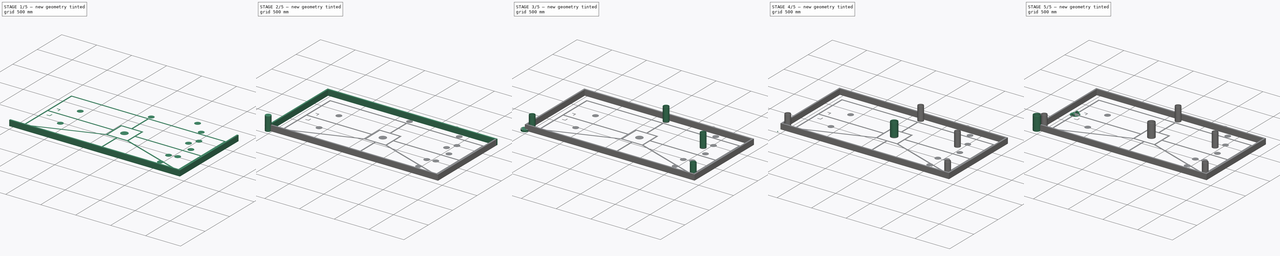
[diagram: build sequence overview — one tinted view per stage of 5, left to right]
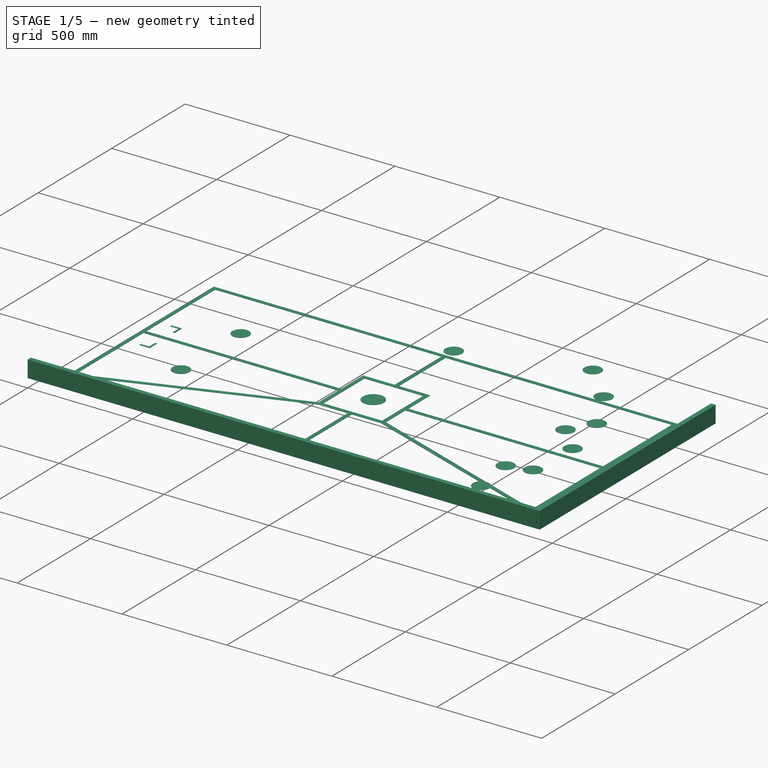
[diagram: stage 1 of 5 — iso view after this stage's code; geometry added in this stage tinted green]
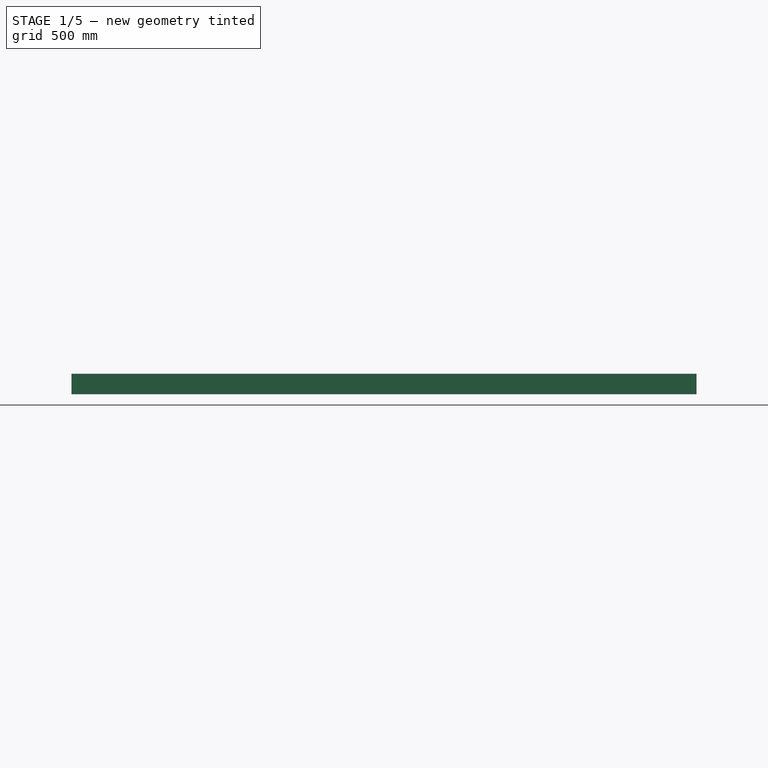
[diagram: stage 1 of 5 — front view after this stage's code; geometry added in this stage tinted green]
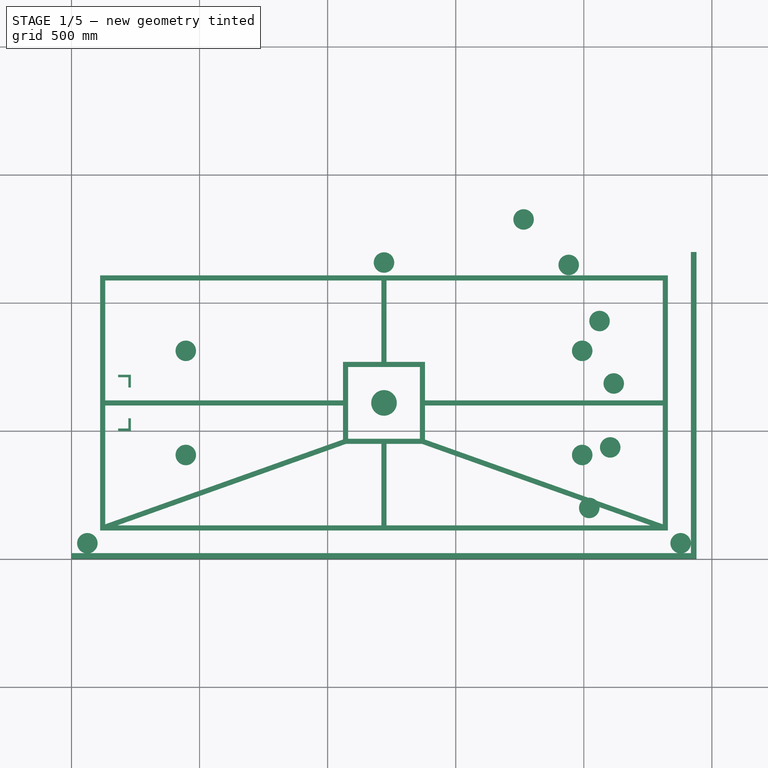
[diagram: stage 1 of 5 — top view after this stage's code; geometry added in this stage tinted green]
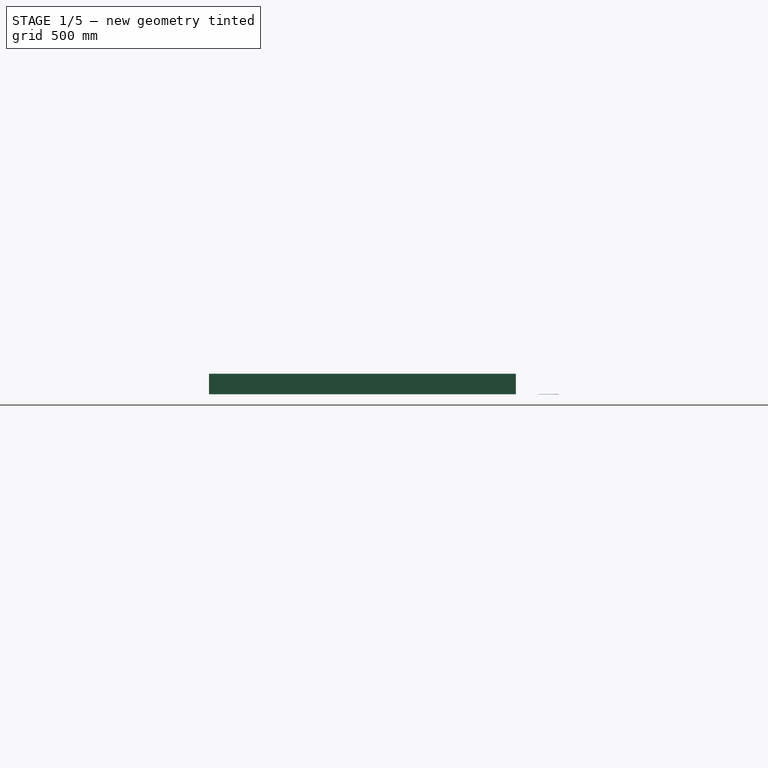
[diagram: stage 1 of 5 — right view after this stage's code; geometry added in this stage tinted green]
FCSTD DOCUMENT  (FreeCAD 0.17R12643 (Git))
Label: myrt
License: All rights reserved
LicenseURL: http://en.wikipedia.org/wiki/All_rights_reserved
objects: TechDraw::DrawViewDimension×37, TechDraw::DrawProjGroupItem×16, TechDraw::DrawViewAnnotation×16, App::DocumentObjectGroup×10, Part::Cylinder×9, App::FeaturePython×8, Part::MultiFuse×7, Sketcher::SketchObject×7, Part::Extrusion×7, Part::Thickness×6, TechDraw::DrawSVGTemplate×6, TechDraw::DrawPage×6, Part::RuledSurface×4, TechDraw::DrawProjGroup×3, TechDraw::DrawViewMulti×3, App::MeasureDistance×2, TechDraw::DrawViewPart×2, Part::Box×1, Part::Sphere×1, Part::FeaturePython×1
note: 43 computed .brp shape members not serialized (recipe doc carries the construction recipe); baked Part::Feature solids carry a one-line shape summary decoded from their .brp

FEATURE [TechDraw::DrawSVGTemplate] Template001
  EditableTexts = Designed_by_Name=Romain Rossi; Drawing_number=*; FC-Date=2017-04-05; FC-SC=1:5; FC-SH=1/1; FC-Title=Make Your Robot Tick; Subtitle=Energy storage and counting station; Weight=*
  Height = 210
  Orientation = 1
  Width = 297
FEATURE [TechDraw::DrawProjGroupItem] ProjItem003  label="Front001"
  ArcCenterMarks = true
  CenterScale = 2
  Direction = (0,0,1)
  HardHidden = false
  HiddenWidth = 0.15
  HorizCenterLine = false
  IsoCount = 0
  IsoHidden = false
  IsoVisible = false
  IsoWidth = 0.3
  KeepLabel = false
  LineWidth = 0.7
  Rotation = 0
  RotationVector = (1,0,0)
  Scale = 0.2
  ScaleType = 2
  SeamHidden = false
  SeamVisible = false
  ShowSectionLine = true
  SmoothHidden = false
  SmoothVisible = false
  Type = 0
  VertCenterLine = false
  X = 36.4336
  Y = 7.52172
FEATURE [TechDraw::DrawProjGroupItem] ProjItem004  label="Top001"
  ArcCenterMarks = true
  CenterScale = 2
  Direction = (0,1,0)
  HardHidden = false
  HiddenWidth = 0.15
  HorizCenterLine = false
  IsoCount = 0
  IsoHidden = false
  IsoVisible = false
  IsoWidth = 0.3
  KeepLabel = false
  LineWidth = 0.7
  Rotation = 0
  RotationVector = (1,0,0)
  Scale = 0.2
  ScaleType = 2
  SeamHidden = false
  SeamVisible = false
  ShowSectionLine = true
  SmoothHidden = false
  SmoothVisible = false
  Type = 4
  VertCenterLine = false
  X = 0
  Y = -56.1259
FEATURE [TechDraw::DrawProjGroupItem] ProjItem005  label="Right"
  ArcCenterMarks = true
  CenterScale = 2
  Direction = (1,0,0)
  HardHidden = false
  HiddenWidth = 0.15
  HorizCenterLine = false
  IsoCount = 0
  IsoHidden = false
  IsoVisible = false
  IsoWidth = 0.3
  KeepLabel = false
  LineWidth = 0.7
  Rotation = 0
  RotationVector = (0,0,-1)
  Scale = 0.2
  ScaleType = 2
  SeamHidden = false
  SeamVisible = false
  ShowSectionLine = true
  SmoothHidden = false
  SmoothVisible = false
  Type = 2
  VertCenterLine = false
  X = -56.1259
  Y = 0
FEATURE [TechDraw::DrawProjGroupItem] ProjItem006  label="Left"
  ArcCenterMarks = true
  CenterScale = 2
  Direction = (-1,0,0)
  HardHidden = false
  HiddenWidth = 0.15
  HorizCenterLine = false
  IsoCount = 0
  IsoHidden = false
  IsoVisible = false
  IsoWidth = 0.3
  KeepLabel = false
  LineWidth = 0.7
  Rotation = 0
  RotationVector = (0,0,1)
  Scale = 0.2
  ScaleType = 2
  SeamHidden = false
  SeamVisible = false
  ShowSectionLine = true
  SmoothHidden = false
  SmoothVisible = false
  Type = 1
  VertCenterLine = false
  X = 56.1259
  Y = 0
FEATURE [TechDraw::DrawProjGroupItem] ProjItem007  label="Bottom"
  ArcCenterMarks = true
  CenterScale = 2
  Direction = (0,-1,0)
  HardHidden = false
  HiddenWidth = 0.15
  HorizCenterLine = false
  IsoCount = 0
  IsoHidden = false
  IsoVisible = false
  IsoWidth = 0.3
  KeepLabel = false
  LineWidth = 0.7
  Rotation = 0
  RotationVector = (1,0,0)
  Scale = 0.2
  ScaleType = 2
  SeamHidden = false
  SeamVisible = false
  ShowSectionLine = true
  SmoothHidden = false
  SmoothVisible = false
  Type = 5
  VertCenterLine = false
  X = 0
  Y = 56.1259
FEATURE [TechDraw::DrawProjGroupItem] ProjItem008  label="FrontBottomLeft"
  ArcCenterMarks = true
  CenterScale = 2
  Direction = (-1,-1,-1)
  HardHidden = false
  HiddenWidth = 0.15
  HorizCenterLine = false
  IsoCount = 0
  IsoHidden = false
  IsoVisible = false
  IsoWidth = 0.3
  KeepLabel = false
  LineWidth = 0.7
  Rotation = 0
  RotationVector = (0.776553,0.382683,1.50017)
  Scale = 0.2
  ScaleType = 2
  SeamHidden = false
  SeamVisible = false
  ShowSectionLine = true
  SmoothHidden = false
  SmoothVisible = false
  Type = 8
  VertCenterLine = false
  X = 56.1259
  Y = 56.1259
FEATURE [TechDraw::DrawProjGroup] ProjGroup001
  Anchor = -> ProjItem003
  AutoDistribute = true
  CubeDirs = (1) [(0,0,0)]
  CubeRotations = (1) [(0,0,0)]
  KeepLabel = false
  ProjectionType = 0
  Rotation = 0
  Scale = 0.2
  ScaleType = 2
  Views = -> [ProjItem003,ProjItem004,ProjItem005,ProjItem006,ProjItem007,ProjItem008]
  X = 115.143
  Y = 105.222
  spacingX = 15
  spacingY = 15
FEATURE [TechDraw::DrawSVGTemplate] Template002
  EditableTexts = AUTHOR_NAME=Romain Rossi; DN=1; DRAWING_TITLE=Make Your Robot Tick; FC-DATE=2017-04-05; FC-REV=REV A; FC-SC=1:5; FC-SH=1/1; FC-SI=A4; PN=Energy source
  Height = 210
  Orientation = 1
  Width = 297
FEATURE [TechDraw::DrawProjGroupItem] ProjItem009  label="Front002"
  ArcCenterMarks = true
  CenterScale = 2
  Direction = (0,0,1)
  HardHidden = false
  HiddenWidth = 0.15
  HorizCenterLine = false
  IsoCount = 0
  IsoHidden = false
  IsoVisible = false
  IsoWidth = 0.3
  KeepLabel = false
  LineWidth = 0.7
  Rotation = 0
  RotationVector = (1,0,0)
  Scale = 0.2
  ScaleType = 2
  SeamHidden = false
  SeamVisible = false
  ShowSectionLine = true
  SmoothHidden = false
  SmoothVisible = false
  Type = 0
  VertCenterLine = false
  X = -47.7
  Y = -109.872
FEATURE [TechDraw::DrawProjGroupItem] ProjItem010  label="Bottom001"
  ArcCenterMarks = true
  CenterScale = 2
  Direction = (0,-1,0)
  HardHidden = false
  HiddenWidth = 0.15
  HorizCenterLine = false
  IsoCount = 0
  IsoHidden = false
  IsoVisible = false
  IsoWidth = 0.3
  KeepLabel = false
  LineWidth = 0.7
  Rotation = 0
  RotationVector = (1,0,0)
  Scale = 0.2
  ScaleType = 2
  SeamHidden = false
  SeamVisible = false
  ShowSectionLine = true
  SmoothHidden = false
  SmoothVisible = false
  Type = 5
  VertCenterLine = false
  X = 0
  Y = 55
FEATURE [TechDraw::DrawProjGroupItem] ProjItem011  label="Top002"
  ArcCenterMarks = true
  CenterScale = 2
  Direction = (0,1,0)
  HardHidden = false
  HiddenWidth = 0.15
  HorizCenterLine = false
  IsoCount = 0
  IsoHidden = false
  IsoVisible = false
  IsoWidth = 0.3
  KeepLabel = false
  LineWidth = 0.7
  Rotation = 0
  RotationVector = (1,0,0)
  Scale = 0.2
  ScaleType = 2
  SeamHidden = false
  SeamVisible = false
  ShowSectionLine = true
  SmoothHidden = false
  SmoothVisible = false
  Type = 4
  VertCenterLine = false
  X = 0
  Y = -55
FEATURE [TechDraw::DrawProjGroupItem] ProjItem012  label="Left001"
  ArcCenterMarks = true
  CenterScale = 2
  Direction = (-1,0,0)
  HardHidden = false
  HiddenWidth = 0.15
  HorizCenterLine = false
  IsoCount = 0
  IsoHidden = false
  IsoVisible = false
  IsoWidth = 0.3
  KeepLabel = false
  LineWidth = 0.7
  Rotation = 0
  RotationVector = (0,0,1)
  Scale = 0.2
  ScaleType = 2
  SeamHidden = false
  SeamVisible = false
  ShowSectionLine = true
  SmoothHidden = false
  SmoothVisible = false
  Type = 1
  VertCenterLine = false
  X = 55
  Y = 0
FEATURE [TechDraw::DrawProjGroupItem] ProjItem013  label="Right001"
  ArcCenterMarks = true
  CenterScale = 2
  Direction = (1,0,0)
  HardHidden = false
  HiddenWidth = 0.15
  HorizCenterLine = false
  IsoCount = 0
  IsoHidden = false
  IsoVisible = false
  IsoWidth = 0.3
  KeepLabel = false
  LineWidth = 0.7
  Rotation = 0
  RotationVector = (0,0,-1)
  Scale = 0.2
  ScaleType = 2
  SeamHidden = false
  SeamVisible = false
  ShowSectionLine = true
  SmoothHidden = false
  SmoothVisible = false
  Type = 2
  VertCenterLine = false
  X = -55
  Y = 0
FEATURE [TechDraw::DrawProjGroupItem] ProjItem014  label="FrontBottomLeft001"
  ArcCenterMarks = true
  CenterScale = 2
  Direction = (-1,-1,-1)
  HardHidden = false
  HiddenWidth = 0.15
  HorizCenterLine = false
  IsoCount = 0
  IsoHidden = false
  IsoVisible = false
  IsoWidth = 0.3
  KeepLabel = false
  LineWidth = 0.7
  Rotation = 0
  RotationVector = (0.776553,0.382683,1.50017)
  Scale = 0.2
  ScaleType = 2
  SeamHidden = false
  SeamVisible = false
  ShowSectionLine = true
  SmoothHidden = false
  SmoothVisible = false
  Type = 8
  VertCenterLine = false
  X = 55
  Y = 55
FEATURE [TechDraw::DrawProjGroup] ProjGroup002
  Anchor = -> ProjItem009
  AutoDistribute = true
  CubeDirs = (1) [(0,0,0)]
  CubeRotations = (1) [(0,0,0)]
  KeepLabel = false
  ProjectionType = 0
  Rotation = 0
  Scale = 0.2
  ScaleType = 2
  Views = -> [ProjItem009,ProjItem010,ProjItem011,ProjItem012,ProjItem013,ProjItem014]
  X = 138.271
  Y = 111.894
  spacingX = 15
  spacingY = 15
FEATURE [TechDraw::DrawViewDimension] Dimension021
  Font = Sans
  Fontsize = 3
  FormatSpec = ⌀%value%
  KeepLabel = false
  LineWidth = 0.5
  MeasureType = 1
  References2D = -> [ProjItem003]
  Rotation = 0
  ScaleType = 0
  Type = 5
  X = 28.43
  Y = -21.1463
FEATURE [TechDraw::DrawViewDimension] Dimension022
  Font = Sans
  Fontsize = 3
  FormatSpec = %value%
  KeepLabel = false
  LineWidth = 0.5
  MeasureType = 1
  References2D = -> [ProjItem007]
  Rotation = 0
  ScaleType = 0
  Type = 2
  X = -18.4946
  Y = -9.78473
FEATURE [TechDraw::DrawViewDimension] Dimension023
  Font = Sans
  Fontsize = 3
  FormatSpec = %value%
  KeepLabel = false
  LineWidth = 0.5
  MeasureType = 1
  References2D = -> [ProjItem007]
  Rotation = 0
  ScaleType = 0
  Type = 2
  X = 17.1233
  Y = -2.03849
FEATURE [TechDraw::DrawViewDimension] Dimension024
  Font = Sans
  Fontsize = 3
  FormatSpec = %value%
  KeepLabel = false
  LineWidth = 0.5
  MeasureType = 1
  References2D = -> [ProjItem007]
  Rotation = 0
  ScaleType = 0
  Type = 0
  X = 30.392
  Y = 2.2238
FEATURE [TechDraw::DrawViewDimension] Dimension025
  Font = Sans
  Fontsize = 3
  FormatSpec = ⌀%value%
  KeepLabel = false
  LineWidth = 0.5
  MeasureType = 1
  References2D = -> [ProjItem009]
  Rotation = 0
  ScaleType = 0
  Type = 5
  X = 28.2051
  Y = -15.1213
FEATURE [TechDraw::DrawViewDimension] Dimension026
  Font = Sans
  Fontsize = 3
  FormatSpec = %value%
  KeepLabel = false
  LineWidth = 0.5
  MeasureType = 1
  References2D = -> [ProjItem010]
  Rotation = 0
  ScaleType = 0
  Type = 2
  X = -15.5975
  Y = -7.10381
FEATURE [TechDraw::DrawViewDimension] Dimension027
  Font = Sans
  Fontsize = 3
  FormatSpec = %value%
  KeepLabel = false
  LineWidth = 0.5
  MeasureType = 1
  References2D = -> [ProjItem010]
  Rotation = 0
  ScaleType = 0
  Type = 2
  X = 12.3545
  Y = -0.154431
FEATURE [TechDraw::DrawViewDimension] Dimension028
  Font = Sans
  Fontsize = 3
  FormatSpec = %value%
  KeepLabel = false
  LineWidth = 0.5
  MeasureType = 1
  References2D = -> [ProjItem010]
  Rotation = 0
  ScaleType = 0
  Type = 0
  X = 21.3114
  Y = 3.39748
FEATURE [TechDraw::DrawViewAnnotation] Annotation002
  Font = Sans
  KeepLabel = false
  LineSpace = 80
  MaxWidth = -1
  Rotation = 0
  ScaleType = 0
  Text = +
  TextSize = 4
  TextStyle = 0
  X = 135.345
  Y = 150.554
FEATURE [TechDraw::DrawViewAnnotation] Annotation003
  Font = Sans
  KeepLabel = false
  LineSpace = 80
  MaxWidth = -1
  Rotation = 0
  ScaleType = 0
  Text = -
  TextSize = 4
  TextStyle = 0
  X = 136.32
  Y = 143.49
FEATURE [TechDraw::DrawViewAnnotation] Annotation004
  Font = Sans
  KeepLabel = false
  LineSpace = 80
  MaxWidth = -1
  Rotation = 0
  ScaleType = 0
  Text = +
  TextSize = 4
  TextStyle = 0
  X = 112.008
  Y = 158.561
FEATURE [TechDraw::DrawViewAnnotation] Annotation005
  Font = Sans
  KeepLabel = false
  LineSpace = 80
  MaxWidth = -1
  Rotation = 0
  ScaleType = 0
  Text = -
  TextSize = 4
  TextStyle = 0
  X = 113.364
  Y = 150.736
FEATURE [TechDraw::DrawPage] Page002  label="dStation"
  KeepUpdated = true
  ProjectionType = 0
  Template = -> Template001
  Views = -> [ProjGroup001,Dimension021,Dimension022,Dimension023,Dimension024,Annotation004,Annotation005]
FEATURE [App::DocumentObjectGroup] Groupe004  label="Station-parts"
  Group = -> [Fusion001,Page002]
FEATURE [TechDraw::DrawViewDimension] Dimension029
  Font = Sans
  Fontsize = 3
  FormatSpec = %value%
  KeepLabel = false
  LineWidth = 0.5
  MeasureType = 1
  References2D = -> [ProjItem013]
  Rotation = 0
  ScaleType = 0
  Type = 0
  X = -2.47089
  Y = -14.9798
FEATURE [TechDraw::DrawViewDimension] Dimension030
  Font = Sans
  Fontsize = 3
  FormatSpec = %value%
  KeepLabel = false
  LineWidth = 0.5
  MeasureType = 1
  References2D = -> [ProjItem013]
  Rotation = 0
  ScaleType = 0
  Type = 0
  X = -3.39748
  Y = 13.1266
FEATURE [TechDraw::DrawPage] Page003  label="dSource"
  KeepUpdated = true
  ProjectionType = 0
  Template = -> Template002
  Views = -> [ProjGroup002,Dimension025,Dimension026,Dimension027,Dimension028,Annotation002,Annotation003,Dimension029,Dimension030]
FEATURE [App::DocumentObjectGroup] Groupe003  label="Source-parts"
  Group = -> [Fusion,Groupe,Groupe002,Page003]
FEATURE [Part::Box] Box  label="Floor"
  AttacherType = Attacher::AttachEngine3D
  Height = 22
  Length = 2440
  Placement = pos=(0,0,-22) rot=(0,0,1;0rad)
  Width = 1220
  expr: Length = 2440
FEATURE [Sketcher::SketchObject] Sketch002  label="Floor-linesThick"
  ExternalGeometry = -> [Box]
  MapMode = 5
  Support = -> [Box]
  sketch-geometry (63):
    g0: LineSegment [constr] StartX=1300 StartY=1198 StartZ=0 EndX=1300 EndY=22 EndZ=0
    g1: LineSegment [constr] StartX=22 StartY=600 StartZ=0 EndX=2418 EndY=600 EndZ=0
    g2: GeomPoint [constr] X=1300 Y=600 Z=0
    g3: Circle [constr] CenterX=1300 CenterY=600 CenterZ=0 NormalX=0 NormalY=0 NormalZ=1 AngleXU=0 Radius=50
    g4: Circle [constr] CenterX=62 CenterY=62 CenterZ=0 NormalX=0 NormalY=0 NormalZ=1 AngleXU=0 Radius=40
    g5: Circle [constr] CenterX=2378 CenterY=62 CenterZ=0 NormalX=0 NormalY=0 NormalZ=1 AngleXU=0 Radius=40
    g6: LineSegment [constr] StartX=22 StartY=700 StartZ=0 EndX=222 EndY=700 EndZ=0
    g7: LineSegment [constr] StartX=222 StartY=700 StartZ=0 EndX=222 EndY=500 EndZ=0
    g8: LineSegment [constr] StartX=222 StartY=500 StartZ=0 EndX=22 EndY=500 EndZ=0
    g9: LineSegment [constr] StartX=22 StartY=500 StartZ=0 EndX=22 EndY=700 EndZ=0
    g10: LineSegment [constr] StartX=1300 StartY=600 StartZ=0 EndX=62 EndY=62 EndZ=0
    g11: LineSegment [constr] StartX=1300 StartY=600 StartZ=0 EndX=2378 EndY=62 EndZ=0
    g12: LineSegment [constr] StartX=1160 StartY=740 StartZ=0 EndX=1440 EndY=740 EndZ=0
    g13: LineSegment [constr] StartX=1440 StartY=740 StartZ=0 EndX=1440 EndY=460 EndZ=0
    g14: LineSegment [constr] StartX=1440 StartY=460 StartZ=0 EndX=1160 EndY=460 EndZ=0
    g15: LineSegment [constr] StartX=1160 StartY=460 StartZ=0 EndX=1160 EndY=740 EndZ=0
    g16: GeomPoint [constr] X=1250 Y=600 Z=0
    g17: LineSegment [constr] StartX=22 StartY=1198 StartZ=0 EndX=2418 EndY=1198 EndZ=0
    g18: LineSegment [constr] StartX=2418 StartY=1198 StartZ=0 EndX=2418 EndY=22 EndZ=0
    g19: LineSegment [constr] StartX=2418 StartY=22 StartZ=0 EndX=22 EndY=22 EndZ=0
    g20: LineSegment [constr] StartX=22 StartY=22 StartZ=0 EndX=22 EndY=1198 EndZ=0
    g21: Circle [constr] CenterX=1300 CenterY=1158 CenterZ=0 NormalX=0 NormalY=0 NormalZ=1 AngleXU=0 Radius=40
    g22: LineSegment StartX=2005.8 StartY=1178 StartZ=0 EndX=1310 EndY=1178 EndZ=0
    g23: LineSegment StartX=1310 StartY=1178 StartZ=0 EndX=1310 EndY=760 EndZ=0
    g24: LineSegment StartX=1310 StartY=760 StartZ=0 EndX=1460 EndY=760 EndZ=0
    g25: LineSegment StartX=1460 StartY=760 StartZ=0 EndX=1460 EndY=1012.2 EndZ=0
    g26: LineSegment StartX=1460 StartY=1012.2 StartZ=0 EndX=2005.8 EndY=1012.2 EndZ=0
    g27: LineSegment StartX=2005.8 StartY=1012.2 StartZ=0 EndX=2005.8 EndY=1178 EndZ=0
    g28: LineSegment StartX=1290 StartY=1178 StartZ=0 EndX=42 EndY=1178 EndZ=0
    g29: LineSegment StartX=42 StartY=1178 StartZ=0 EndX=42 EndY=720 EndZ=0
    g30: LineSegment StartX=42 StartY=720 StartZ=0 EndX=242 EndY=720 EndZ=0
    g31: LineSegment StartX=242 StartY=720 StartZ=0 EndX=242 EndY=610 EndZ=0
    g32: LineSegment StartX=242 StartY=610 StartZ=0 EndX=1140 EndY=610 EndZ=0
    g33: LineSegment StartX=1140 StartY=610 StartZ=0 EndX=1140 EndY=760 EndZ=0
    g34: LineSegment StartX=1140 StartY=760 StartZ=0 EndX=1290 EndY=760 EndZ=0
    g35: LineSegment StartX=1290 StartY=760 StartZ=0 EndX=1290 EndY=1178 EndZ=0
    g36: LineSegment StartX=42 StartY=80 StartZ=0 EndX=42 EndY=480 EndZ=0
    g37: LineSegment StartX=42 StartY=480 StartZ=0 EndX=242 EndY=480 EndZ=0
    g38: LineSegment StartX=242 StartY=480 StartZ=0 EndX=242 EndY=590 EndZ=0
    g39: LineSegment StartX=242 StartY=590 StartZ=0 EndX=1140 EndY=590 EndZ=0
    g40: LineSegment StartX=1140 StartY=590 StartZ=0 EndX=1140 EndY=540 EndZ=0
    g41: LineSegment StartX=1140 StartY=540 StartZ=0 EndX=42 EndY=80 EndZ=0
    g42: LineSegment [constr] StartX=74.3701 StartY=52.9907 StartZ=0 EndX=1140 EndY=515.828 EndZ=0
    g43: LineSegment [constr] StartX=1140 StartY=515.828 StartZ=0 EndX=1140 EndY=436.807 EndZ=0
    g44: LineSegment [constr] StartX=1140 StartY=436.807 StartZ=0 EndX=1277.75 EndY=436.807 EndZ=0
    g45: LineSegment [constr] StartX=1277.75 StartY=436.807 StartZ=0 EndX=1277.75 EndY=52.9907 EndZ=0
    g46: LineSegment [constr] StartX=1277.75 StartY=52.9907 StartZ=0 EndX=74.3701 EndY=52.9907 EndZ=0
    g47: LineSegment [constr] StartX=42 StartY=720 StartZ=0 EndX=22 EndY=720 EndZ=0
    g48: LineSegment [constr] StartX=42 StartY=1178 StartZ=0 EndX=42 EndY=1198 EndZ=0
    g49: LineSegment [constr] StartX=42 StartY=720 StartZ=0 EndX=42 EndY=700 EndZ=0
    g50: LineSegment [constr] StartX=242 StartY=610 StartZ=0 EndX=222 EndY=610 EndZ=0
    g51: LineSegment [constr] StartX=242 StartY=590 StartZ=0 EndX=222 EndY=590 EndZ=0
    g52: LineSegment [constr] StartX=242 StartY=610 StartZ=0 EndX=242 EndY=590 EndZ=0
    g53: LineSegment [constr] StartX=42 StartY=480 StartZ=0 EndX=42 EndY=500 EndZ=0
    g54: LineSegment [constr] StartX=42 StartY=480 StartZ=0 EndX=22 EndY=480 EndZ=0
    g55: LineSegment [constr] StartX=1140 StartY=610 StartZ=0 EndX=1160 EndY=610 EndZ=0
    g56: LineSegment [constr] StartX=1290 StartY=760 StartZ=0 EndX=1290 EndY=740 EndZ=0
    g57: LineSegment [constr] StartX=1310 StartY=760 StartZ=0 EndX=1310 EndY=740 EndZ=0
    g58: LineSegment [constr] StartX=1310 StartY=1178 StartZ=0 EndX=1310 EndY=1198 EndZ=0
    g59: LineSegment [constr] StartX=2005.8 StartY=1178 StartZ=0 EndX=2418 EndY=1178 EndZ=0
    g60: LineSegment [constr] StartX=2005.8 StartY=1012.2 StartZ=0 EndX=2005.8 EndY=600 EndZ=0
    g61: LineSegment [constr] StartX=1290 StartY=760 StartZ=0 EndX=1310 EndY=760 EndZ=0
    g62: LineSegment [constr] StartX=1460 StartY=1012.2 StartZ=0 EndX=1440 EndY=1012.2 EndZ=0
  constraints (169):
    c: PointOnObject(g2,g0)
    c: PointOnObject(g2,g1)
    c: Coincident(g3,g2)
    c: Radius(g3) = 50
    c: Radius(g4) = 40
    c: Radius(g5) = 40
    c: Coincident(g6,g7)
    c: Coincident(g7,g8)
    c: Coincident(g8,g9)
    c: Coincident(g9,g6)
    c: Horizontal(g6)
    c: Horizontal(g8)
    c: Vertical(g7)
    c: Vertical(g9)
    c: DistanceX(g6,g6) = 200
    c: DistanceY(g7,g7) = 200
    c: Symmetric(g6,g8,g1)
    c: Coincident(g10,g2)
    c: Coincident(g10,g4)
    c: Coincident(g11,g2)
    c: Coincident(g11,g5)
    c: Coincident(g12,g13)
    c: Coincident(g13,g14)
    c: Coincident(g14,g15)
    c: Coincident(g15,g12)
    c: Horizontal(g12)
    c: Horizontal(g14)
    c: Vertical(g13)
    c: Vertical(g15)
    c: Symmetric(g12,g14,g1)
    c: Symmetric(g14,g13,g0)
    c: Distance(g16,g15) = 90
    c: Equal(g15,g12)
    c: Coincident(g17,g18)
    c: Coincident(g18,g19)
    c: Coincident(g19,g20)
    c: Coincident(g20,g17)
    c: Horizontal(g17)
    c: Horizontal(g19)
    c: Vertical(g18)
    c: Vertical(g20)
    c: DistanceX(g-4,g17) = 22
    c: DistanceY(g17,g-4) = 22
    c: DistanceX(g18,g-6) = 22
    c: DistanceY(g-6,g18) = 22
    c: Tangent(g4,g19)
    c: Tangent(g4,g20)
    c: Tangent(g5,g19)
    c: Tangent(g5,g18)
    c: PointOnObject(g6,g20)
    c: PointOnObject(g0,g17)
    c: PointOnObject(g21,g0)
    c: Radius(g21) = 40
    c: Tangent(g21,g17)
    c: PointOnObject(g1,g18)
    c: PointOnObject(g0,g19)
    c: PointOnObject(g1,g20)
    c: Horizontal(g22)
    c: Coincident(g22,g23)
    c: Vertical(g23)
    c: Coincident(g23,g24)
    c: Horizontal(g24)
    c: Coincident(g24,g25)
    c: Vertical(g25)
    c: Coincident(g25,g26)
    c: Horizontal(g26)
    c: Coincident(g26,g27)
    c: Coincident(g27,g22)
    c: Vertical(g27)
    c: Horizontal(g28)
    c: Coincident(g28,g29)
    c: Vertical(g29)
    c: Coincident(g29,g30)
    c: Horizontal(g30)
    c: Coincident(g30,g31)
    c: Vertical(g31)
    c: Coincident(g31,g32)
    c: Horizontal(g32)
    c: Coincident(g32,g33)
    c: Vertical(g33)
    c: Coincident(g33,g34)
    c: Horizontal(g34)
    c: Coincident(g34,g35)
    c: Coincident(g35,g28)
    c: Vertical(g35)
    c: Vertical(g36)
    c: Coincident(g36,g37)
    c: Horizontal(g37)
    c: Coincident(g37,g38)
    c: Vertical(g38)
    c: Coincident(g38,g39)
    c: Horizontal(g39)
    c: Coincident(g39,g40)
    c: Vertical(g40)
    c: Coincident(g40,g41)
    c: Coincident(g41,g36)
    c: Coincident(g42,g43)
    c: Vertical(g43)
    c: Coincident(g43,g44)
    c: Horizontal(g44)
    c: Coincident(g44,g45)
    c: Vertical(g45)
    c: Coincident(g45,g46)
    c: Coincident(g46,g42)
    c: Horizontal(g46)
    c: Coincident(g47,g29)
    c: PointOnObject(g47,g20)
    c: Horizontal(g47)
    c: DistanceY(g28,g17) = 20  'LineWidth'
    c: Coincident(g48,g28)
    c: PointOnObject(g48,g17)
    c: Vertical(g48)
    c: Coincident(g49,g29)
    c: PointOnObject(g49,g6)
    c: Vertical(g49)
    c: Coincident(g50,g31)
    c: PointOnObject(g50,g7)
    c: Horizontal(g50)
    c: Coincident(g51,g38)
    c: PointOnObject(g51,g7)
    c: Horizontal(g51)
    c: Coincident(g52,g31)
    c: Coincident(g52,g38)
    c: Vertical(g52)
    c: Coincident(g53,g36)
    c: PointOnObject(g53,g8)
    c: Vertical(g53)
    c: Coincident(g54,g36)
    c: PointOnObject(g54,g20)
    c: Horizontal(g54)
    c: Coincident(g55,g32)
    c: PointOnObject(g55,g15)
    c: Horizontal(g55)
    c: Coincident(g56,g34)
    c: PointOnObject(g56,g12)
    c: Vertical(g56)
    c: Coincident(g57,g23)
    c: Vertical(g57)
    c: Coincident(g58,g22)
    c: PointOnObject(g58,g17)
    c: Vertical(g58)
    c: Coincident(g59,g22)
    c: PointOnObject(g59,g18)
    c: Horizontal(g59)
    c: Coincident(g60,g26)
    c: PointOnObject(g60,g1)
    c: Vertical(g60)
    c: Equal(g59,g60)
    c: Equal(g57,g58)
    c: Equal(g56,g55)
    c: Equal(g55,g52)
    c: Equal(g52,g50)
    c: Equal(g50,g51)
    c: Equal(g51,g53)
    c: Equal(g53,g54)
    c: Equal(g54,g49)
    c: Equal(g49,g47)
    c: Equal(g47,g48)
    c: Coincident(g61,g34)
    c: Coincident(g61,g23)
    c: Horizontal(g61)
    c: Equal(g61,g58)
    c: Equal(g58,g48)
    c: Equal(g31,g38)
    c: Equal(g34,g24)
    c: Coincident(g62,g25)
    c: PointOnObject(g62,g13)
    c: Horizontal(g62)
    c: Equal(g62,g48)
FEATURE [Sketcher::SketchObject] Sketch003  label="Floor-linesCM"
  ExternalGeometry = -> [Box]
  MapMode = 5
  Support = -> [Box]
  sketch-geometry (22):
    g0: LineSegment [constr] StartX=1300 StartY=1198 StartZ=0 EndX=1300 EndY=22 EndZ=0
    g1: LineSegment [constr] StartX=22 StartY=600 StartZ=0 EndX=2418 EndY=600 EndZ=0
    g2: GeomPoint [constr] X=1300 Y=600 Z=0
    g3: Circle [constr] CenterX=1300 CenterY=600 CenterZ=0 NormalX=0 NormalY=0 NormalZ=1 AngleXU=0 Radius=50
    g4: Circle [constr] CenterX=62 CenterY=62 CenterZ=0 NormalX=0 NormalY=0 NormalZ=1 AngleXU=0 Radius=40
    g5: Circle [constr] CenterX=2378 CenterY=62 CenterZ=0 NormalX=0 NormalY=0 NormalZ=1 AngleXU=0 Radius=40
    g6: LineSegment [constr] StartX=22 StartY=700 StartZ=0 EndX=222 EndY=700 EndZ=0
    g7: LineSegment [constr] StartX=222 StartY=700 StartZ=0 EndX=222 EndY=500 EndZ=0
    g8: LineSegment [constr] StartX=222 StartY=500 StartZ=0 EndX=22 EndY=500 EndZ=0
    g9: LineSegment [constr] StartX=22 StartY=500 StartZ=0 EndX=22 EndY=700 EndZ=0
    g10: LineSegment [constr] StartX=1300 StartY=600 StartZ=0 EndX=62 EndY=62 EndZ=0
    g11: LineSegment [constr] StartX=1300 StartY=600 StartZ=0 EndX=2378 EndY=62 EndZ=0
    g12: LineSegment [constr] StartX=1160 StartY=740 StartZ=0 EndX=1440 EndY=740 EndZ=0
    g13: LineSegment [constr] StartX=1440 StartY=740 StartZ=0 EndX=1440 EndY=460 EndZ=0
    g14: LineSegment [constr] StartX=1440 StartY=460 StartZ=0 EndX=1160 EndY=460 EndZ=0
    g15: LineSegment [constr] StartX=1160 StartY=460 StartZ=0 EndX=1160 EndY=740 EndZ=0
    g16: GeomPoint [constr] X=1250 Y=600 Z=0
    g17: LineSegment [constr] StartX=22 StartY=1198 StartZ=0 EndX=2418 EndY=1198 EndZ=0
    g18: LineSegment [constr] StartX=2418 StartY=1198 StartZ=0 EndX=2418 EndY=22 EndZ=0
    g19: LineSegment [constr] StartX=2418 StartY=22 StartZ=0 EndX=22 EndY=22 EndZ=0
    g20: LineSegment [constr] StartX=22 StartY=22 StartZ=0 EndX=22 EndY=1198 EndZ=0
    g21: Circle [constr] CenterX=1300 CenterY=1158 CenterZ=0 NormalX=0 NormalY=0 NormalZ=1 AngleXU=0 Radius=40
  constraints (58):
    c: PointOnObject(g2,g0)
    c: PointOnObject(g2,g1)
    c: Coincident(g3,g2)
    c: Radius(g3) = 50
    c: Radius(g4) = 40
    c: Radius(g5) = 40
    c: Coincident(g6,g7)
    c: Coincident(g7,g8)
    c: Coincident(g8,g9)
    c: Coincident(g9,g6)
    c: Horizontal(g6)
    c: Horizontal(g8)
    c: Vertical(g7)
    c: Vertical(g9)
    c: DistanceX(g6,g6) = 200
    c: DistanceY(g7,g7) = 200
    c: Symmetric(g6,g8,g1)
    c: Coincident(g10,g2)
    c: Coincident(g10,g4)
    c: Coincident(g11,g2)
    c: Coincident(g11,g5)
    c: Coincident(g12,g13)
    c: Coincident(g13,g14)
    c: Coincident(g14,g15)
    c: Coincident(g15,g12)
    c: Horizontal(g12)
    c: Horizontal(g14)
    c: Vertical(g13)
    c: Vertical(g15)
    c: Symmetric(g12,g14,g1)
    c: Symmetric(g14,g13,g0)
    c: PointOnObject(g16,g1)
    c: Distance(g16,g15) = 90
    c: Equal(g15,g12)
    c: Coincident(g17,g18)
    c: Coincident(g18,g19)
    c: Coincident(g19,g20)
    c: Coincident(g20,g17)
    c: Horizontal(g17)
    c: Horizontal(g19)
    c: Vertical(g18)
    c: Vertical(g20)
    c: DistanceX(g-4,g17) = 22
    c: DistanceY(g17,g-4) = 22
    c: DistanceX(g18,g-6) = 22
    c: DistanceY(g-6,g18) = 22
    c: Tangent(g4,g19)
    c: Tangent(g4,g20)
    c: Tangent(g5,g19)
    c: Tangent(g5,g18)
    c: PointOnObject(g6,g20)
    c: PointOnObject(g0,g17)
    c: PointOnObject(g21,g0)
    c: Radius(g21) = 40
    c: Tangent(g21,g17)
    c: PointOnObject(g1,g18)
    c: PointOnObject(g0,g19)
    c: PointOnObject(g1,g20)
FEATURE [Sketcher::SketchObject] Sketch004  label="Floor-linesCM_Clearance"
  ExternalGeometry = -> [Box]
  MapMode = 5
  Support = -> [Box]
  sketch-geometry (30):
    g0: LineSegment [constr] StartX=1220 StartY=1198 StartZ=0 EndX=1220 EndY=22 EndZ=0
    g1: LineSegment [constr] StartX=22 StartY=610 StartZ=0 EndX=2418 EndY=610 EndZ=0
    g2: Circle [constr] CenterX=1220 CenterY=610 CenterZ=0 NormalX=0 NormalY=0 NormalZ=1 AngleXU=0 Radius=50
    g3: Circle [constr] CenterX=62 CenterY=62 CenterZ=0 NormalX=0 NormalY=0 NormalZ=1 AngleXU=0 Radius=40
    g4: Circle [constr] CenterX=2378 CenterY=62 CenterZ=0 NormalX=0 NormalY=0 NormalZ=1 AngleXU=0 Radius=40
    g5: LineSegment [constr] StartX=22 StartY=710 StartZ=0 EndX=222 EndY=710 EndZ=0
    g6: LineSegment [constr] StartX=222 StartY=710 StartZ=0 EndX=222 EndY=510 EndZ=0
    g7: LineSegment [constr] StartX=222 StartY=510 StartZ=0 EndX=22 EndY=510 EndZ=0
    g8: LineSegment [constr] StartX=22 StartY=510 StartZ=0 EndX=22 EndY=710 EndZ=0
    g9: LineSegment [constr] StartX=1070 StartY=760 StartZ=0 EndX=1370 EndY=760 EndZ=0
    g10: LineSegment [constr] StartX=1370 StartY=760 StartZ=0 EndX=1370 EndY=460 EndZ=0
    g11: LineSegment [constr] StartX=1370 StartY=460 StartZ=0 EndX=1070 EndY=460 EndZ=0
    g12: LineSegment [constr] StartX=1070 StartY=460 StartZ=0 EndX=1070 EndY=760 EndZ=0
    g13: LineSegment [constr] StartX=22 StartY=1198 StartZ=0 EndX=2418 EndY=1198 EndZ=0
    g14: LineSegment [constr] StartX=22 StartY=22 StartZ=0 EndX=22 EndY=1198 EndZ=0
    g15: Circle [constr] CenterX=1220 CenterY=1158 CenterZ=0 NormalX=0 NormalY=0 NormalZ=1 AngleXU=0 Radius=40
    g16: LineSegment [constr] StartX=122 StartY=1098 StartZ=0 EndX=2318 EndY=1098 EndZ=0
    g17: LineSegment [constr] StartX=2318 StartY=1098 StartZ=0 EndX=2318 EndY=122 EndZ=0
    g18: LineSegment [constr] StartX=2318 StartY=122 StartZ=0 EndX=122 EndY=122 EndZ=0
    g19: LineSegment [constr] StartX=122 StartY=122 StartZ=0 EndX=122 EndY=1098 EndZ=0
    g20: LineSegment [constr] StartX=122 StartY=1098 StartZ=0 EndX=122 EndY=1198 EndZ=0
    g21: LineSegment [constr] StartX=122 StartY=1098 StartZ=0 EndX=22 EndY=1098 EndZ=0
    g22: LineSegment [constr] StartX=2318 StartY=122 StartZ=0 EndX=2418 EndY=122 EndZ=0
    g23: LineSegment [constr] StartX=2318 StartY=122 StartZ=0 EndX=2318 EndY=22 EndZ=0
    g24: LineSegment [constr] StartX=1170 StartY=760 StartZ=0 EndX=1170 EndY=460 EndZ=0
    g25: LineSegment [constr] StartX=1070 StartY=610 StartZ=0 EndX=1170 EndY=610 EndZ=0
    g26: LineSegment [constr] StartX=2418 StartY=1198 StartZ=0 EndX=2418 EndY=610 EndZ=0
    g27: LineSegment [constr] StartX=2418 StartY=610 StartZ=0 EndX=2418 EndY=22 EndZ=0
    g28: LineSegment [constr] StartX=22 StartY=22 StartZ=0 EndX=1220 EndY=22 EndZ=0
    g29: LineSegment [constr] StartX=1220 StartY=22 StartZ=0 EndX=2418 EndY=22 EndZ=0
  constraints (90):
    c: PointOnObject(g2,g0)
    c: PointOnObject(g2,g1)
    c: Radius(g2) = 50  'StationRadius'
    c: Radius(g3) = 40  'SourceRadius'
    c: Coincident(g5,g6)
    c: Coincident(g6,g7)
    c: Coincident(g7,g8)
    c: Coincident(g8,g5)
    c: Horizontal(g5)
    c: Horizontal(g7)
    c: Vertical(g6)
    c: Vertical(g8)
    c: DistanceX(g5,g5) = 200
    c: DistanceY(g6,g6) = 200
    c: Symmetric(g5,g7,g1)
    c: Coincident(g9,g10)
    c: Coincident(g10,g11)
    c: Coincident(g11,g12)
    c: Coincident(g12,g9)
    c: Horizontal(g9)
    c: Horizontal(g11)
    c: Vertical(g10)
    c: Vertical(g12)
    c: Symmetric(g9,g11,g1)
    c: Symmetric(g11,g10,g0)
    c: Equal(g12,g9)  'Constraint33'
    c: Coincident(g14,g13)  'Constraint31'
    c: Horizontal(g13)  'Constraint30'
    c: Vertical(g14)  'Constraint29'
    c: DistanceX(g-4,g13) = 22
    c: DistanceY(g13,g-4) = 22
    c: DistanceX(g27,g-6) = 22
    c: DistanceY(g-6,g27) = 22
    c: Tangent(g3,g14)
    c: PointOnObject(g5,g14)
    c: PointOnObject(g0,g13)
    c: PointOnObject(g15,g0)
    c: Tangent(g15,g13)
    c: PointOnObject(g1,g14)
    c: Horizontal(g16)
    c: Coincident(g16,g17)
    c: Vertical(g17)
    c: Coincident(g17,g18)
    c: Horizontal(g18)
    c: Coincident(g18,g19)
    c: Coincident(g19,g16)
    c: Vertical(g19)
    c: Coincident(g20,g16)
    c: PointOnObject(g20,g13)
    c: Vertical(g20)
    c: Coincident(g21,g16)
    c: PointOnObject(g21,g14)
    c: Horizontal(g21)
    c: Coincident(g22,g17)
    c: Horizontal(g22)
    c: Coincident(g23,g17)
    c: Vertical(g23)
    c: DistanceY(g20,g20) = 100  'RobotClearance'
    c: Equal(g21,g20)  'Constraint78'
    c: Equal(g20,g23)  'Constraint67'
    c: Equal(g23,g22)  'Constraint62'
    c: PointOnObject(g24,g9)  'Constraint70'
    c: Vertical(g24)  'Constraint65'
    c: Tangent(g24,g2)
    c: PointOnObject(g25,g12)
    c: PointOnObject(g25,g24)
    c: Horizontal(g25)
    c: Equal(g25,g20)
    c: Coincident(g26,g13)
    c: Coincident(g26,g1)
    c: Vertical(g26)
    c: Coincident(g27,g1)
    c: Vertical(g27)
    c: Tangent(g27,g4)
    c: Equal(g27,g26)
    c: Coincident(g28,g14)
    c: Coincident(g28,g0)
    c: Horizontal(g28)
    c: Tangent(g28,g3)
    c: Coincident(g29,g0)
    c: Coincident(g29,g27)
    c: Horizontal(g29)
    c: Tangent(g29,g4)
    c: Equal(g28,g29)
    c: PointOnObject(g24,g11)
    c: PointOnObject(g25,g1)
    c: PointOnObject(g23,g29)
    c: PointOnObject(g22,g27)
    c: Equal(g3,g15)
    c: Equal(g4,g3)
FEATURE [Sketcher::SketchObject] Sketch005  label="Floor-Roads"
  ExternalGeometry = -> [Box]
  MapMode = 5
  Support = -> [Box]
  sketch-geometry (118):
    g0: LineSegment [constr] StartX=1220 StartY=1198 StartZ=0 EndX=1220 EndY=22 EndZ=0
    g1: LineSegment [constr] StartX=22 StartY=610 StartZ=0 EndX=2418 EndY=610 EndZ=0
    g2: Circle CenterX=1220 CenterY=610 CenterZ=0 NormalX=0 NormalY=0 NormalZ=1 AngleXU=0 Radius=50
    g3: Circle CenterX=62 CenterY=62 CenterZ=0 NormalX=0 NormalY=0 NormalZ=1 AngleXU=0 Radius=40
    g4: Circle CenterX=2378 CenterY=62 CenterZ=0 NormalX=0 NormalY=0 NormalZ=1 AngleXU=0 Radius=40
    g5: LineSegment [constr] StartX=22 StartY=710 StartZ=0 EndX=222 EndY=710 EndZ=0
    g6: LineSegment [constr] StartX=222 StartY=710 StartZ=0 EndX=222 EndY=510 EndZ=0
    g7: LineSegment [constr] StartX=222 StartY=510 StartZ=0 EndX=22 EndY=510 EndZ=0
    g8: LineSegment [constr] StartX=22 StartY=510 StartZ=0 EndX=22 EndY=710 EndZ=0
    g9: LineSegment [constr] StartX=1070 StartY=760 StartZ=0 EndX=1370 EndY=760 EndZ=0
    g10: LineSegment [constr] StartX=1370 StartY=760 StartZ=0 EndX=1370 EndY=460 EndZ=0
    g11: LineSegment [constr] StartX=1370 StartY=460 StartZ=0 EndX=1070 EndY=460 EndZ=0
    g12: LineSegment [constr] StartX=1070 StartY=460 StartZ=0 EndX=1070 EndY=760 EndZ=0
    g13: LineSegment [constr] StartX=22 StartY=1198 StartZ=0 EndX=2418 EndY=1198 EndZ=0
    g14: LineSegment [constr] StartX=22 StartY=22 StartZ=0 EndX=22 EndY=1198 EndZ=0
    g15: Circle CenterX=1220 CenterY=1158 CenterZ=0 NormalX=0 NormalY=0 NormalZ=1 AngleXU=0 Radius=40
    g16: LineSegment [constr] StartX=122 StartY=1098 StartZ=0 EndX=2318 EndY=1098 EndZ=0
    g17: LineSegment [constr] StartX=2318 StartY=1098 StartZ=0 EndX=2318 EndY=122 EndZ=0
    g18: LineSegment [constr] StartX=2318 StartY=122 StartZ=0 EndX=122 EndY=122 EndZ=0
    g19: LineSegment [constr] StartX=122 StartY=122 StartZ=0 EndX=122 EndY=1098 EndZ=0
    g20: LineSegment [constr] StartX=122 StartY=1098 StartZ=0 EndX=122 EndY=1198 EndZ=0
    g21: LineSegment [constr] StartX=122 StartY=1098 StartZ=0 EndX=22 EndY=1098 EndZ=0
    g22: LineSegment [constr] StartX=2318 StartY=122 StartZ=0 EndX=2418 EndY=122 EndZ=0
    g23: LineSegment [constr] StartX=2318 StartY=122 StartZ=0 EndX=2318 EndY=22 EndZ=0
    g24: LineSegment [constr] StartX=1170 StartY=760 StartZ=0 EndX=1170 EndY=460 EndZ=0
    g25: LineSegment [constr] StartX=1070 StartY=610 StartZ=0 EndX=1170 EndY=610 EndZ=0
    g26: LineSegment [constr] StartX=2418 StartY=1198 StartZ=0 EndX=2418 EndY=610 EndZ=0
    g27: LineSegment [constr] StartX=2418 StartY=610 StartZ=0 EndX=2418 EndY=22 EndZ=0
    g28: LineSegment [constr] StartX=22 StartY=22 StartZ=0 EndX=1220 EndY=22 EndZ=0
    g29: LineSegment [constr] StartX=1220 StartY=22 StartZ=0 EndX=2418 EndY=22 EndZ=0
    g30: LineSegment StartX=132 StartY=620 StartZ=0 EndX=132 EndY=1088 EndZ=0
    g31: LineSegment StartX=132 StartY=1088 StartZ=0 EndX=1210 EndY=1088 EndZ=0
    g32: LineSegment StartX=1210 StartY=1088 StartZ=0 EndX=1210 EndY=770 EndZ=0
    g33: LineSegment StartX=1210 StartY=770 StartZ=0 EndX=1060 EndY=770 EndZ=0
    g34: LineSegment StartX=1060 StartY=770 StartZ=0 EndX=1060 EndY=620 EndZ=0
    g35: LineSegment StartX=1060 StartY=620 StartZ=0 EndX=132 EndY=620 EndZ=0
    g36: LineSegment StartX=132 StartY=600 StartZ=0 EndX=132 EndY=136.182 EndZ=0
    g37: LineSegment StartX=1210 StartY=450 StartZ=0 EndX=1071.73 EndY=450 EndZ=0
    g38: LineSegment StartX=1060 StartY=600 StartZ=0 EndX=132 EndY=600 EndZ=0
    g39: LineSegment StartX=1380 StartY=600 StartZ=0 EndX=2308 EndY=600 EndZ=0
    g40: LineSegment StartX=2308 StartY=600 StartZ=0 EndX=2308 EndY=136.182 EndZ=0
    g41: LineSegment StartX=1210 StartY=132 StartZ=0 EndX=1210 EndY=450 EndZ=0
    g42: LineSegment StartX=1380 StartY=467.051 StartZ=0 EndX=1380 EndY=600 EndZ=0
    g43: LineSegment StartX=1230 StartY=1088 StartZ=0 EndX=2308 EndY=1088 EndZ=0
    g44: LineSegment StartX=2308 StartY=1088 StartZ=0 EndX=2308 EndY=620 EndZ=0
    g45: LineSegment StartX=2308 StartY=620 StartZ=0 EndX=1380 EndY=620 EndZ=0
    g46: LineSegment StartX=1380 StartY=620 StartZ=0 EndX=1380 EndY=770 EndZ=0
    g47: LineSegment StartX=1380 StartY=770 StartZ=0 EndX=1230 EndY=770 EndZ=0
    g48: LineSegment StartX=1230 StartY=770 StartZ=0 EndX=1230 EndY=1088 EndZ=0
    g49: LineSegment [constr] StartX=132 StartY=1088 StartZ=0 EndX=132 EndY=1098 EndZ=0
    g50: LineSegment [constr] StartX=132 StartY=1088 StartZ=0 EndX=122 EndY=1088 EndZ=0
    g51: LineSegment [constr] StartX=1210 StartY=1088 StartZ=0 EndX=1220 EndY=1088 EndZ=0
    g52: LineSegment [constr] StartX=1070 StartY=760 StartZ=0 EndX=1070 EndY=770 EndZ=0
    g53: LineSegment [constr] StartX=1070 StartY=760 StartZ=0 EndX=1060 EndY=760 EndZ=0
    g54: LineSegment [constr] StartX=1060 StartY=620 StartZ=0 EndX=1060 EndY=610 EndZ=0
    g55: LineSegment [constr] StartX=1070 StartY=600 StartZ=0 EndX=1070 EndY=610 EndZ=0
    g56: LineSegment [constr] StartX=1071.73 StartY=460 StartZ=0 EndX=1071.73 EndY=450 EndZ=0
    g57: LineSegment [constr] StartX=1070 StartY=467.051 StartZ=0 EndX=1060 EndY=467.051 EndZ=0
    g58: LineSegment [constr] StartX=179.824 StartY=132 StartZ=0 EndX=179.824 EndY=122 EndZ=0
    g59: LineSegment [constr] StartX=132 StartY=136.182 StartZ=0 EndX=122 EndY=136.182 EndZ=0
    g60: LineSegment [constr] StartX=1210 StartY=132 StartZ=0 EndX=1220 EndY=132 EndZ=0
    g61: LineSegment [constr] StartX=1210 StartY=122 StartZ=0 EndX=1220 EndY=122 EndZ=0
    g62: LineSegment [constr] StartX=1230 StartY=1088 StartZ=0 EndX=1220 EndY=1088 EndZ=0
    g63: LineSegment [constr] StartX=1370 StartY=760 StartZ=0 EndX=1370 EndY=770 EndZ=0
    g64: LineSegment [constr] StartX=1370 StartY=760 StartZ=0 EndX=1380 EndY=760 EndZ=0
    g65: LineSegment [constr] StartX=1370 StartY=467.051 StartZ=0 EndX=1380 EndY=467.051 EndZ=0
    g66: LineSegment [constr] StartX=1368.27 StartY=460 StartZ=0 EndX=1368.27 EndY=450 EndZ=0
    g67: LineSegment [constr] StartX=2308 StartY=1088 StartZ=0 EndX=2318 EndY=1088 EndZ=0
    g68: LineSegment [constr] StartX=2308 StartY=1088 StartZ=0 EndX=2308 EndY=1098 EndZ=0
    g69: LineSegment [constr] StartX=2308 StartY=136.182 StartZ=0 EndX=2318 EndY=136.182 EndZ=0
    g70: LineSegment [constr] StartX=2260.18 StartY=132 StartZ=0 EndX=2260.18 EndY=122 EndZ=0
    g71: LineSegment [constr] StartX=1380 StartY=620 StartZ=0 EndX=1380 EndY=610 EndZ=0
    g72: LineSegment [constr] StartX=1380 StartY=600 StartZ=0 EndX=1380 EndY=610 EndZ=0
    g73: LineSegment StartX=1080 StartY=750 StartZ=0 EndX=1360 EndY=750 EndZ=0
    g74: LineSegment StartX=1360 StartY=750 StartZ=0 EndX=1360 EndY=470 EndZ=0
    g75: LineSegment StartX=1360 StartY=470 StartZ=0 EndX=1080 EndY=470 EndZ=0
    g76: LineSegment StartX=1080 StartY=470 StartZ=0 EndX=1080 EndY=750 EndZ=0
    g77: LineSegment [constr] StartX=1080 StartY=750 StartZ=0 EndX=1070 EndY=750 EndZ=0
    g78: LineSegment [constr] StartX=1080 StartY=750 StartZ=0 EndX=1080 EndY=760 EndZ=0
    g79: LineSegment [constr] StartX=1360 StartY=470 StartZ=0 EndX=1370 EndY=470 EndZ=0
    g80: LineSegment [constr] StartX=1360 StartY=470 StartZ=0 EndX=1360 EndY=460 EndZ=0
    g81: LineSegment StartX=112 StartY=1108 StartZ=0 EndX=2328 EndY=1108 EndZ=0
    g82: LineSegment StartX=2328 StartY=1108 StartZ=0 EndX=2328 EndY=112 EndZ=0
    g83: LineSegment StartX=2328 StartY=112 StartZ=0 EndX=112 EndY=112 EndZ=0
    g84: LineSegment StartX=112 StartY=112 StartZ=0 EndX=112 EndY=1108 EndZ=0
    g85: LineSegment [constr] StartX=2328 StartY=136.182 StartZ=0 EndX=2318 EndY=136.182 EndZ=0
    g86: LineSegment [constr] StartX=2260.18 StartY=112 StartZ=0 EndX=2260.18 EndY=122 EndZ=0
    g87: LineSegment [constr] StartX=132 StartY=1098 StartZ=0 EndX=132 EndY=1108 EndZ=0
    g88: LineSegment [constr] StartX=122 StartY=1088 StartZ=0 EndX=112 EndY=1088 EndZ=0
    g89: LineSegment StartX=1230 StartY=450 StartZ=0 EndX=1230 EndY=132 EndZ=0
    g90: LineSegment [constr] StartX=1230 StartY=132 StartZ=0 EndX=1220 EndY=132 EndZ=0
    g91: LineSegment StartX=1368.27 StartY=450 StartZ=0 EndX=1230 EndY=450 EndZ=0
    g92: LineSegment StartX=1230 StartY=132 StartZ=0 EndX=2260.18 EndY=132 EndZ=0
    g93: LineSegment StartX=1210 StartY=132 StartZ=0 EndX=179.824 EndY=132 EndZ=0
    g94: LineSegment StartX=182 StartY=710 StartZ=0 EndX=182 EndY=720 EndZ=0
    g95: LineSegment StartX=182 StartY=720 StartZ=0 EndX=232 EndY=720 EndZ=0
    g96: LineSegment StartX=232 StartY=720 StartZ=0 EndX=232 EndY=670 EndZ=0
    g97: LineSegment StartX=232 StartY=670 StartZ=0 EndX=222 EndY=670 EndZ=0
    g98: LineSegment StartX=222 StartY=670 StartZ=0 EndX=222 EndY=710 EndZ=0
    g99: LineSegment StartX=222 StartY=710 StartZ=0 EndX=182 EndY=710 EndZ=0
    g100: LineSegment StartX=182.014 StartY=510 StartZ=0 EndX=182.014 EndY=500 EndZ=0
    g101: LineSegment StartX=182.014 StartY=500 StartZ=0 EndX=232.014 EndY=500 EndZ=0
    g102: LineSegment StartX=232.014 StartY=500 StartZ=0 EndX=232.014 EndY=550 EndZ=0
    g103: LineSegment StartX=232.014 StartY=550 StartZ=0 EndX=222.014 EndY=550 EndZ=0
    g104: LineSegment StartX=222.014 StartY=550 StartZ=0 EndX=222 EndY=510 EndZ=0
    g105: LineSegment StartX=222 StartY=510 StartZ=0 EndX=182.014 EndY=510 EndZ=0
    g106: LineSegment StartX=132 StartY=136.182 StartZ=0 EndX=1060 EndY=467.051 EndZ=0
    g107: LineSegment StartX=179.824 StartY=132 StartZ=0 EndX=1071.73 EndY=450 EndZ=0
    g108: LineSegment StartX=1060 StartY=600 StartZ=0 EndX=1060 EndY=467.051 EndZ=0
    g109: LineSegment StartX=1368.27 StartY=450 StartZ=0 EndX=2260.18 EndY=132 EndZ=0
    g110: LineSegment StartX=1380 StartY=467.051 StartZ=0 EndX=2308 EndY=136.182 EndZ=0
    g111: LineSegment [constr] StartX=173.107 StartY=150.838 StartZ=0 EndX=176.466 EndY=141.419 EndZ=0
    g112: LineSegment [constr] StartX=176.466 StartY=141.419 StartZ=0 EndX=179.824 EndY=132 EndZ=0
    g113: LineSegment [constr] StartX=122 StartY=122 StartZ=0 EndX=1070 EndY=460 EndZ=0
    g114: LineSegment [constr] StartX=2318 StartY=122 StartZ=0 EndX=1370 EndY=460 EndZ=0
    g115: LineSegment [constr] StartX=2260.18 StartY=132 StartZ=0 EndX=2263.53 EndY=141.419 EndZ=0
    g116: LineSegment [constr] StartX=2263.53 StartY=141.419 StartZ=0 EndX=2266.89 EndY=150.838 EndZ=0
    g117: LineSegment [constr] StartX=1060 StartY=600 StartZ=0 EndX=1060 EndY=610 EndZ=0
  constraints (365):
    c: PointOnObject(g2,g0)
    c: PointOnObject(g2,g1)
    c: Radius(g2) = 50  'StationRadius'
    c: Radius(g3) = 40  'SourceRadius'
    c: Coincident(g5,g6)
    c: Coincident(g6,g7)
    c: Coincident(g7,g8)
    c: Coincident(g8,g5)
    c: Horizontal(g5)
    c: Horizontal(g7)
    c: Vertical(g6)
    c: Vertical(g8)
    c: DistanceX(g5,g5) = 200  'StartAreaLength'
    c: DistanceY(g6,g6) = 200  'StartAreaWidth'
    c: Symmetric(g5,g7,g1)
    c: Coincident(g9,g10)
    c: Coincident(g12,g9)
    c: Horizontal(g9)
    c: Horizontal(g11)
    c: Vertical(g10)
    c: Symmetric(g9,g11,g1)
    c: Symmetric(g11,g10,g0)
    c: Equal(g12,g9)  'Constraint33'
    c: Coincident(g14,g13)  'Constraint31'
    c: Horizontal(g13)  'Constraint30'
    c: Vertical(g14)  'Constraint29'
    c: DistanceX(g-4,g13) = 22  'Constraint28'
    c: DistanceY(g13,g-4) = 22
    c: DistanceX(g27,g-6) = 22
    c: DistanceY(g-6,g27) = 22
    c: Tangent(g3,g14)
    c: PointOnObject(g5,g14)
    c: PointOnObject(g0,g13)
    c: PointOnObject(g15,g0)
    c: Tangent(g15,g13)
    c: PointOnObject(g1,g14)
    c: Horizontal(g16)
    c: Coincident(g16,g17)
    c: Vertical(g17)
    c: Coincident(g17,g18)
    c: Horizontal(g18)
    c: Coincident(g18,g19)
    c: Coincident(g19,g16)
    c: Vertical(g19)
    c: Coincident(g20,g16)
    c: PointOnObject(g20,g13)
    c: Vertical(g20)
    c: Coincident(g21,g16)
    c: PointOnObject(g21,g14)
    c: Horizontal(g21)
    c: Coincident(g22,g17)
    c: Horizontal(g22)
    c: Coincident(g23,g17)
    c: Vertical(g23)
    c: DistanceY(g20,g20) = 100  'RobotClearance'
    c: Equal(g21,g20)  'Constraint78'
    c: Equal(g20,g23)  'Constraint67'
    c: Equal(g23,g22)  'Constraint62'
    c: PointOnObject(g24,g9)  'Constraint70'
    c: Vertical(g24)  'Constraint65'
    c: Tangent(g24,g2)  'Constraint63'
    c: PointOnObject(g25,g12)
    c: PointOnObject(g25,g24)
    c: Horizontal(g25)
    c: Equal(g25,g20)
    c: Coincident(g26,g13)
    c: Coincident(g26,g1)
    c: Vertical(g26)
    c: Coincident(g27,g1)
    c: Vertical(g27)
    c: Equal(g27,g26)
    c: Coincident(g28,g14)
    c: Coincident(g28,g0)
    c: Horizontal(g28)
    c: Tangent(g28,g3)
    c: Coincident(g29,g0)
    c: Coincident(g29,g27)
    c: Horizontal(g29)
    c: Tangent(g29,g4)
    c: Equal(g28,g29)
    c: PointOnObject(g24,g11)
    c: PointOnObject(g25,g1)
    c: PointOnObject(g23,g29)
    c: PointOnObject(g22,g27)
    c: Equal(g3,g15)
    c: Equal(g4,g3)
    c: Vertical(g30)
    c: Coincident(g30,g31)
    c: Horizontal(g31)
    c: Coincident(g31,g32)
    c: Vertical(g32)
    c: Coincident(g32,g33)
    c: Horizontal(g33)
    c: Coincident(g33,g34)
    c: Vertical(g34)
    c: Coincident(g34,g35)
    c: Coincident(g35,g30)
    c: Horizontal(g35)
    c: Vertical(g36)
    c: Horizontal(g37)
    c: Coincident(g38,g36)
    c: Horizontal(g38)
    c: Horizontal(g39)
    c: Coincident(g39,g40)
    c: Vertical(g40)
    c: Vertical(g41)
    c: Coincident(g42,g39)
    c: Vertical(g42)
    c: Horizontal(g43)
    c: Coincident(g43,g44)
    c: Vertical(g44)
    c: Coincident(g44,g45)
    c: Horizontal(g45)
    c: Coincident(g45,g46)
    c: Coincident(g46,g47)
    c: Horizontal(g47)
    c: Coincident(g47,g48)
    c: Coincident(g48,g43)
    c: Vertical(g48)
    c: Vertical(g46)
    c: Coincident(g49,g30)
    c: PointOnObject(g49,g16)
    c: Vertical(g49)
    c: Coincident(g50,g30)
    c: PointOnObject(g50,g19)
    c: Horizontal(g50)
    c: Coincident(g51,g31)
    c: PointOnObject(g51,g0)
    c: Horizontal(g51)
    c: Coincident(g52,g9)
    c: PointOnObject(g52,g33)
    c: Vertical(g52)
    c: Coincident(g53,g9)
    c: PointOnObject(g53,g34)
    c: Horizontal(g53)
    c: Coincident(g54,g34)
    c: PointOnObject(g54,g1)
    c: Vertical(g54)
    c: PointOnObject(g55,g1)
    c: Vertical(g55)
    c: Vertical(g56)
    c: Horizontal(g57)
    c: PointOnObject(g58,g18)
    c: Vertical(g58)
    c: PointOnObject(g59,g19)
    c: Horizontal(g59)
    c: PointOnObject(g60,g0)
    c: Horizontal(g60)
    c: PointOnObject(g61,g0)
    c: Horizontal(g61)
    c: Coincident(g62,g43)
    c: PointOnObject(g62,g0)
    c: Horizontal(g62)
    c: Coincident(g63,g9)
    c: PointOnObject(g63,g47)
    c: Vertical(g63)
    c: Coincident(g64,g9)
    c: PointOnObject(g64,g46)
    c: Horizontal(g64)
    c: PointOnObject(g65,g42)
    c: Horizontal(g65)
    c: Vertical(g66)
    c: Coincident(g67,g43)
    c: PointOnObject(g67,g17)
    c: Horizontal(g67)
    c: Coincident(g68,g43)
    c: PointOnObject(g68,g16)
    c: Vertical(g68)
    c: PointOnObject(g69,g17)
    c: Horizontal(g69)
    c: PointOnObject(g70,g18)
    c: Vertical(g70)
    c: DistanceX(g51,g51) = 10  'LineHalfWidth'
    c: Coincident(g71,g45)  'Constraint205'
    c: PointOnObject(g71,g1)  'Constraint204'
    c: Vertical(g71)  'Constraint203'
    c: Coincident(g72,g39)  'Constraint201'
    c: PointOnObject(g72,g1)  'Constraint199'
    c: Vertical(g72)  'Constraint198'
    c: Equal(g51,g62)  'Constraint197'
    c: Equal(g62,g49)  'Constraint196'
    c: Equal(g49,g50)  'Constraint193'
    c: Equal(g50,g54)  'Constraint192'
    c: Equal(g54,g55)  'Constraint191'
    c: Equal(g55,g53)  'Constraint187'
    c: Equal(g53,g52)  'Constraint186'
    c: Equal(g52,g57)
    c: Equal(g57,g56)
    c: Equal(g56,g64)
    c: Equal(g64,g63)
    c: Equal(g63,g66)
    c: Equal(g66,g65)
    c: Equal(g65,g60)
    c: Equal(g60,g61)
    c: Equal(g61,g59)
    c: Equal(g59,g58)
    c: Equal(g58,g70)
    c: Equal(g70,g69)
    c: Equal(g69,g68)
    c: Equal(g68,g67)
    c: Equal(g67,g72)
    c: Equal(g72,g71)
    c: Coincident(g73,g74)
    c: Coincident(g74,g75)
    c: Coincident(g75,g76)
    c: Coincident(g76,g73)
    c: Horizontal(g73)
    c: Horizontal(g75)
    c: Vertical(g74)
    c: Vertical(g76)
    c: Coincident(g77,g73)
    c: PointOnObject(g77,g12)
    c: Horizontal(g77)
    c: Coincident(g78,g73)
    c: PointOnObject(g78,g9)
    c: Vertical(g78)
    c: Coincident(g79,g74)
    c: PointOnObject(g79,g10)
    c: Horizontal(g79)
    c: Coincident(g80,g74)
    c: PointOnObject(g80,g11)
    c: Vertical(g80)
    c: Equal(g79,g80)
    c: Equal(g80,g78)
    c: Equal(g78,g77)
    c: Equal(g77,g51)
    c: Coincident(g81,g82)
    c: Coincident(g82,g83)
    c: Coincident(g83,g84)
    c: Coincident(g84,g81)
    c: Horizontal(g81)
    c: Horizontal(g83)
    c: Vertical(g82)
    c: Vertical(g84)
    c: PointOnObject(g85,g82)
    c: PointOnObject(g85,g17)
    c: Horizontal(g85)
    c: PointOnObject(g86,g83)
    c: PointOnObject(g86,g18)
    c: Vertical(g86)
    c: PointOnObject(g87,g16)
    c: PointOnObject(g87,g81)
    c: Vertical(g87)
    c: PointOnObject(g88,g19)
    c: PointOnObject(g88,g84)
    c: Horizontal(g88)
    c: Equal(g88,g87)
    c: Equal(g87,g85)
    c: Equal(g85,g86)
    c: Equal(g86,g51)
    c: PointOnObject(g86,g70)
    c: PointOnObject(g85,g69)
    c: PointOnObject(g87,g49)
    c: PointOnObject(g88,g50)
    c: Tangent(g4,g27)
    c: Vertical(g89)
    c: PointOnObject(g90,g89)
    c: PointOnObject(g90,g0)
    c: Horizontal(g90)
    c: Equal(g90,g51)
    c: Coincident(g91,g89)
    c: Horizontal(g91)
    c: Coincident(g37,g41)
    c: PointOnObject(g66,g91)
    c: Coincident(g90,g89)
    c: Coincident(g92,g89)
    c: Horizontal(g92)
    c: Coincident(g93,g41)
    c: Horizontal(g93)
    c: Coincident(g41,g60)
    c: PointOnObject(g94,g5)
    c: Vertical(g94)
    c: Coincident(g94,g95)
    c: Horizontal(g95)
    c: Coincident(g95,g96)
    c: Vertical(g96)
    c: Coincident(g96,g97)
    c: PointOnObject(g97,g6)
    c: Horizontal(g97)
    c: Coincident(g97,g98)
    c: Coincident(g98,g5)
    c: Coincident(g98,g99)
    c: Coincident(g99,g94)
    c: Equal(g94,g97)
    c: Equal(g97,g51)
    c: DistanceY(g96,g96) = 50  'StartAreaCornerLength'
    c: Equal(g96,g95)
    c: Vertical(g100)
    c: Coincident(g100,g101)
    c: Horizontal(g101)
    c: Coincident(g101,g102)
    c: Vertical(g102)
    c: Coincident(g102,g103)
    c: Horizontal(g103)
    c: Coincident(g103,g104)
    c: Coincident(g104,g105)
    c: Coincident(g105,g100)
    c: Equal(g100,g103)
    c: Equal(g102,g101)
    c: Equal(g96,g102)
    c: Equal(g94,g97)
    c: Equal(g97,g103)
    c: Equal(g103,g100)
    c: PointOnObject(g100,g7)
    c: PointOnObject(g106,g36)
    c: PointOnObject(g107,g37)
    c: Coincident(g93,g107)
    c: Coincident(g58,g93)
    c: Coincident(g36,g106)
    c: Coincident(g36,g59)
    c: Coincident(g57,g106)
    c: PointOnObject(g57,g12)
    c: PointOnObject(g56,g11)
    c: Coincident(g56,g107)
    c: Coincident(g12,g11)
    c: Coincident(g37,g56)
    c: Coincident(g108,g38)
    c: Coincident(g108,g57)
    c: Vertical(g108)
    c: Parallel(g106,g107)
    c: PointOnObject(g109,g91)
    c: PointOnObject(g109,g92)
    c: PointOnObject(g110,g42)
    c: PointOnObject(g110,g40)
    c: Parallel(g109,g110)
    c: PointOnObject(g111,g106)
    c: Coincident(g112,g111)
    c: PointOnObject(g112,g107)
    c: Perpendicular(g112,g107)
    c: Perpendicular(g111,g106)
    c: Equal(g112,g111)
    c: Equal(g111,g51)
    c: Coincident(g113,g18)
    c: Coincident(g113,g11)
    c: Parallel(g113,g106)
    c: PointOnObject(g111,g113)
    c: Coincident(g112,g58)
    c: Coincident(g114,g17)
    c: Parallel(g114,g110)
    c: Coincident(g115,g109)
    c: PointOnObject(g115,g114)
    c: Coincident(g116,g115)
    c: PointOnObject(g116,g110)
    c: Perpendicular(g116,g110)
    c: Perpendicular(g109,g115)
    c: Equal(g115,g116)
    c: Equal(g116,g51)
    c: Coincident(g91,g109)
    c: Coincident(g42,g110)
    c: PointOnObject(g66,g11)
    c: PointOnObject(g65,g10)
    c: Coincident(g65,g42)
    c: Coincident(g114,g10)
    c: Coincident(g114,g11)
    c: Coincident(g66,g91)
    c: Coincident(g117,g54)
    c: Vertical(g117)
    c: Equal(g117,g51)
    c: Coincident(g117,g38)
    c: PointOnObject(g70,g92)
    c: Coincident(g92,g109)
    c: PointOnObject(g69,g40)
    c: Coincident(g40,g110)
    c: Coincident(g69,g40)
    c: Coincident(g70,g92)
FEATURE [Part::Extrusion] Extrude  label="Roads"
  Base = -> Sketch005
  Dir = (0,0,1)
  DirMode = 0
  FaceMakerClass = Part::FaceMakerBullseye
  LengthFwd = 1
  LengthRev = 0
  Solid = true
  Symmetric = false
FEATURE [Part::Extrusion] Extrude003  label="Wall3"
  Base = -> Ruled_Surface002
  Dir = (0,0,1)
  DirMode = 0
  FaceMakerClass = Part::FaceMakerBullseye
  LengthFwd = 80
  LengthRev = 0
  Solid = false
  Symmetric = false
FEATURE [Part::Extrusion] Extrude004  label="Wall4"
  Base = -> Ruled_Surface003
  Dir = (0,0,1)
  DirMode = 0
  FaceMakerClass = Part::FaceMakerBullseye
  LengthFwd = 80
  LengthRev = 0
  Solid = false
  Symmetric = false
FEATURE [App::DocumentObjectGroup] Groupe011  label="Walls"
  Group = -> [Extrude001,Extrude002,Extrude003,Extrude004]
FEATURE [Sketcher::SketchObject] Sketch008  label="LocationFastSource"
  ExternalGeometry = -> [Box]
  MapMode = 5
  Support = -> [Box]
  expr: Constraints.BorderDistance = 1220 / 3
  sketch-geometry (14):
    g0: LineSegment [constr] StartX=0 StartY=1220 StartZ=0 EndX=2440 EndY=0 EndZ=0
    g1: LineSegment [constr] StartX=2440 StartY=1220 StartZ=0 EndX=0 EndY=0 EndZ=0
    g2: LineSegment [constr] StartX=446.272 StartY=406.667 StartZ=0 EndX=446.272 EndY=813.333 EndZ=0
    g3: LineSegment [constr] StartX=1993.73 StartY=813.333 StartZ=0 EndX=1993.73 EndY=406.667 EndZ=0
    g4: LineSegment [constr] StartX=1220 StartY=610 StartZ=0 EndX=446.272 EndY=406.667 EndZ=0
    g5: LineSegment [constr] StartX=446.272 StartY=813.333 StartZ=0 EndX=1220 EndY=610 EndZ=0
    g6: LineSegment [constr] StartX=1220 StartY=610 StartZ=0 EndX=1993.73 EndY=813.333 EndZ=0
    g7: LineSegment [constr] StartX=1993.73 StartY=406.667 StartZ=0 EndX=1220 EndY=610 EndZ=0
    g8: Circle CenterX=446.272 CenterY=406.667 CenterZ=0 NormalX=0 NormalY=0 NormalZ=1 AngleXU=0 Radius=40
    g9: Circle CenterX=446.272 CenterY=813.333 CenterZ=0 NormalX=0 NormalY=0 NormalZ=1 AngleXU=0 Radius=40
    g10: Circle CenterX=1993.73 CenterY=813.333 CenterZ=0 NormalX=0 NormalY=0 NormalZ=1 AngleXU=0 Radius=40
    g11: Circle CenterX=1993.73 CenterY=406.667 CenterZ=0 NormalX=0 NormalY=0 NormalZ=1 AngleXU=0 Radius=40
    g12: LineSegment [constr] StartX=446.272 StartY=406.667 StartZ=0 EndX=446.272 EndY=0 EndZ=0
    g13: LineSegment [constr] StartX=1993.73 StartY=406.667 StartZ=0 EndX=1993.73 EndY=0 EndZ=0
  constraints (27):
    c: Coincident(g0,g-3)
    c: Coincident(g0,g-5)
    c: Coincident(g1,g-5)
    c: PointOnObject(g5,g0)
    c: PointOnObject(g5,g1)
    c: Coincident(g1,g-1)
    c: Coincident(g4,g2)
    c: Coincident(g2,g5)
    c: Coincident(g3,g7)
    c: Coincident(g9,g2)
    c: Radius(g9) = 40  'SourceRadius'
    c: Coincident(g8,g2)  'Constraint30'
    c: Coincident(g11,g3)  'Constraint29'
    c: Coincident(g12,g2)  'Constraint44'
    c: PointOnObject(g12,g-4)  'Constraint43'
    c: DistanceY(g12,g12) = 406.667  'BorderDistance'
    c: Vertical(g12)  'Constraint37'
    c: Coincident(g13,g3)  'Constraint36'
    c: PointOnObject(g13,g-4)  'Constraint35'
    c: Vertical(g13)  'Constraint32'
    c: Equal(g12,g13)  'Constraint31'
    c: Equal(g5,g4)  'Constraint27'
    c: Equal(g4,g7)  'Constraint26'
    c: Equal(g7,g6)  'Constraint24'
    c: Coincident(g7,g5)
    c: Coincident(g7,g4)
    c: Distance(g3) = 406.667
FEATURE [Part::Extrusion] Extrude005  label="LocationFastSource-marks"
  Base = -> Sketch008
  Dir = (0,0,1)
  DirMode = 0
  FaceMakerClass = Part::FaceMakerBullseye
  LengthFwd = 1
  LengthRev = 0
  Solid = true
  Symmetric = false
FEATURE [App::DocumentObjectGroup] Groupe009  label="Table"
  Group = -> [Box,Extrude,Sketch,Groupe011,Extrude005]
FEATURE [Sketcher::SketchObject] Sketch009  label="LocationFastSource001"
  ExternalGeometry = -> [Box]
  MapMode = 5
  Support = -> [Box]
  sketch-geometry (20):
    g0: LineSegment [constr] StartX=0 StartY=1220 StartZ=0 EndX=2440 EndY=0 EndZ=0
    g1: LineSegment [constr] StartX=2440 StartY=1220 StartZ=0 EndX=0 EndY=0 EndZ=0
    g2: LineSegment [constr] StartX=1764.95 StartY=1326.26 StartZ=0 EndX=1940.96 EndY=1148.72 EndZ=0
    g3: LineSegment [constr] StartX=1940.96 StartY=1148.72 StartZ=0 EndX=2061.34 EndY=929.606 EndZ=0
    g4: LineSegment [constr] StartX=2116.8 StartY=685.835 StartZ=0 EndX=2103.06 EndY=436.213 EndZ=0
    g5: LineSegment [constr] StartX=2103.06 StartY=436.213 StartZ=0 EndX=2021.19 EndY=200 EndZ=0
    g6: LineSegment [constr] StartX=1220 StartY=610 StartZ=0 EndX=1764.95 EndY=1326.26 EndZ=0
    g7: LineSegment [constr] StartX=1940.96 StartY=1148.72 StartZ=0 EndX=1220 EndY=610 EndZ=0
    g8: LineSegment [constr] StartX=1220 StartY=610 StartZ=0 EndX=2061.34 EndY=929.606 EndZ=0
    g9: LineSegment [constr] StartX=2116.8 StartY=685.835 StartZ=0 EndX=1220 EndY=610 EndZ=0
    g10: LineSegment [constr] StartX=1220 StartY=610 StartZ=0 EndX=2103.06 EndY=436.213 EndZ=0
    g11: LineSegment [constr] StartX=2021.19 StartY=200 StartZ=0 EndX=1220 EndY=610 EndZ=0
    g12: Circle CenterX=1764.95 CenterY=1326.26 CenterZ=0 NormalX=0 NormalY=0 NormalZ=1 AngleXU=0 Radius=40
    g13: Circle CenterX=1940.96 CenterY=1148.72 CenterZ=0 NormalX=0 NormalY=0 NormalZ=1 AngleXU=0 Radius=40
    g14: Circle CenterX=2061.34 CenterY=929.606 CenterZ=0 NormalX=0 NormalY=0 NormalZ=1 AngleXU=0 Radius=40
    g15: Circle CenterX=2116.8 CenterY=685.835 CenterZ=0 NormalX=0 NormalY=0 NormalZ=1 AngleXU=0 Radius=40
    g16: Circle CenterX=2103.06 CenterY=436.213 CenterZ=0 NormalX=0 NormalY=0 NormalZ=1 AngleXU=0 Radius=40
    g17: Circle CenterX=2021.19 CenterY=200 CenterZ=0 NormalX=0 NormalY=0 NormalZ=1 AngleXU=0 Radius=40
    g18: LineSegment [constr] StartX=2021.19 StartY=200 StartZ=0 EndX=2021.19 EndY=0 EndZ=0
    g19: LineSegment [constr] StartX=2061.34 StartY=929.606 StartZ=0 EndX=2116.8 EndY=685.835 EndZ=0
  constraints (43):
    c: Coincident(g0,g-3)
    c: Coincident(g0,g-5)
    c: Coincident(g1,g-5)
    c: PointOnObject(g7,g0)
    c: PointOnObject(g7,g1)
    c: Coincident(g1,g-1)
    c: Coincident(g2,g3)
    c: Coincident(g4,g5)
    c: Coincident(g6,g2)
    c: Coincident(g2,g7)
    c: Coincident(g7,g8)
    c: Coincident(g8,g3)
    c: Coincident(g9,g10)
    c: Coincident(g10,g4)
    c: Coincident(g5,g11)
    c: Coincident(g4,g9)
    c: Coincident(g13,g2)
    c: Coincident(g14,g3)
    c: Coincident(g16,g4)
    c: Radius(g13) = 40  'SourceRadius'
    c: Coincident(g12,g2)  'Constraint30'
    c: Coincident(g17,g5)  'Constraint29'
    c: Coincident(g15,g4)  'Constraint28'
    c: Distance(g9) = 900  'Radius'
    c: Distance(g4) = 250  'SplitDistance'
    c: Coincident(g18,g5)  'Constraint36'
    c: PointOnObject(g18,g-4)  'Constraint35'
    c: Vertical(g18)  'Constraint32'
    c: Equal(g8,g7)
    c: Equal(g7,g6)
    c: Equal(g6,g11)  'Constraint31'
    c: Equal(g11,g10)
    c: Equal(g10,g9)
    c: Equal(g2,g3)
    c: Equal(g3,g4)
    c: Equal(g4,g5)
    c: Coincident(g11,g9)
    c: Coincident(g11,g7)
    c: Coincident(g11,g6)
    c: Distance(g18) = 200
    c: Coincident(g19,g3)
    c: Coincident(g19,g4)
    c: Equal(g4,g19)
FEATURE [Part::Extrusion] Extrude006  label="LocationFastSource001-marks"
  Base = -> Sketch009
  Dir = (0,0,1)
  DirMode = 0
  FaceMakerClass = Part::FaceMakerBullseye
  LengthFwd = 1
  LengthRev = 0
  Solid = true
  Symmetric = false
FEATURE [App::DocumentObjectGroup] Groupe008  label="attic"
  Group = -> [Sketch002,Sketch003,Sketch004,Sketch009,Extrude006,Sketch005,Sketch008]
FEATURE [TechDraw::DrawSVGTemplate] Template003
  EditableTexts = AUTHOR_NAME=Romain Rossi; DN=1; DRAWING_TITLE=Game field; FC-DATE=2017-04-12; FC-REV=REV A; FC-SH=1/1; FC-SI=A4; FreeCAD_DRAWING=Floor and wall black color; PN=1; SI-1=White line width is 20mm; SI-3=Starting area 200x200mm
  Height = 210
  Orientation = 1
  Width = 297
FEATURE [TechDraw::DrawViewMulti] MultiView  label="TopView001"
  ArcCenterMarks = true
  Caption = Top View
  CenterScale = 2
  Direction = (0,0,1)
  HardHidden = false
  HiddenWidth = 0.15
  HorizCenterLine = true
  IsoCount = 0
  IsoHidden = true
  IsoVisible = false
  IsoWidth = 0.3
  KeepLabel = false
  LineWidth = 0.3
  Rotation = 0
  Scale = 0.08
  ScaleType = 2
  SeamHidden = true
  SeamVisible = false
  ShowSectionLine = true
  SmoothHidden = true
  SmoothVisible = false
  VertCenterLine = true
  X = 150
  Y = 140.786
FEATURE [TechDraw::DrawViewDimension] Dimension031
  Font = Sans
  Fontsize = 3
  FormatSpec = %value%
  KeepLabel = false
  LineWidth = 0.5
  MeasureType = 1
  References2D = -> [MultiView]
  Rotation = 0
  ScaleType = 0
  Type = 0
  X = 2.57326
  Y = -55.7883
FEATURE [TechDraw::DrawViewDimension] Dimension035
  Font = Sans
  Fontsize = 3
  FormatSpec = %value%
  KeepLabel = false
  LineWidth = 0.5
  MeasureType = 1
  References2D = -> [MultiView]
  Rotation = 0
  ScaleType = 0
  Type = 2
  X = 104.353
  Y = 1.14072
FEATURE [TechDraw::DrawViewDimension] Dimension036
  Font = Sans
  Fontsize = 3
  FormatSpec = %value%
  KeepLabel = false
  LineWidth = 0.5
  MeasureType = 1
  References2D = -> [MultiView]
  Rotation = 0
  ScaleType = 0
  Type = 1
  X = -72.1487
  Y = -44.331
FEATURE [TechDraw::DrawSVGTemplate] Template004
  EditableTexts = AUTHOR_NAME=Romain Rossi; DN=1; DRAWING_TITLE=Sources location; FC-DATE=2017-04-12; FC-REV=REV A; FC-SH=1/1; FC-SI=A4; FreeCAD_DRAWING=4 positions possible for fast source; PN=1; SI-1=2 Normal source, 1 accelerated, 1 fast
  Height = 210
  Orientation = 1
  Width = 297
FEATURE [TechDraw::DrawViewMulti] MultiView001
  ArcCenterMarks = true
  CenterScale = 2
  Direction = (0,0,1)
  HardHidden = false
  HiddenWidth = 0.15
  HorizCenterLine = false
  IsoCount = 0
  IsoHidden = false
  IsoVisible = false
  IsoWidth = 0.3
  KeepLabel = false
  LineWidth = 0.3
  Rotation = 0
  Scale = 0.1
  ScaleType = 1
  SeamHidden = false
  SeamVisible = false
  ShowSectionLine = true
  SmoothHidden = false
  SmoothVisible = false
  VertCenterLine = false
  X = 150
  Y = 122.052
FEATURE [TechDraw::DrawViewAnnotation] Annotation006
  Font = Sans
  KeepLabel = false
  LineSpace = 100
  MaxWidth = -1
  Rotation = 0
  ScaleType = 0
  Text = Normal source
  TextSize = 3
  TextStyle = 0
  X = 18.4147
  Y = 57.7406
FEATURE [TechDraw::DrawViewAnnotation] Annotation007
  Font = Sans
  KeepLabel = false
  LineSpace = 100
  MaxWidth = -1
  Rotation = 0
  ScaleType = 0
  Text = Accelerated/Medium | source 
  TextSize = 3
  TextStyle = 0
  X = 245.455
  Y = 58.2278
FEATURE [TechDraw::DrawViewAnnotation] Annotation008
  Font = Sans
  KeepLabel = false
  LineSpace = 100
  MaxWidth = -1
  Rotation = 0
  ScaleType = 0
  Text = Normal source 
  TextSize = 3
  TextStyle = 0
  X = 136.32
  Y = 189.531
FEATURE [TechDraw::DrawViewAnnotation] Annotation009
  Font = Sans
  KeepLabel = false
  LineSpace = 100
  MaxWidth = -1
  Rotation = 0
  ScaleType = 0
  Text = Energy | storage 
  TextSize = 3
  TextStyle = 0
  X = 142.653
  Y = 136.669
FEATURE [TechDraw::DrawViewAnnotation] Annotation010
  Font = Sans
  KeepLabel = false
  LineSpace = 100
  MaxWidth = -1
  Rotation = 0
  ScaleType = 0
  Text = Fast source position 1
  TextSize = 3
  TextStyle = 0
  X = 52.2759
  Y = 152.99
FEATURE [TechDraw::DrawViewAnnotation] Annotation011
  Font = Sans
  KeepLabel = false
  LineSpace = 100
  MaxWidth = -1
  Rotation = 0
  ScaleType = 0
  Text = Fast source position 2
  TextSize = 3
  TextStyle = 0
  X = 53.4939
  Y = 110.847
FEATURE [TechDraw::DrawViewAnnotation] Annotation012
  Font = Sans
  KeepLabel = false
  LineSpace = 100
  MaxWidth = -1
  Rotation = 0
  ScaleType = 0
  Text = Fast source position 3
  TextSize = 3
  TextStyle = 0
  X = 204.529
  Y = 111.334
FEATURE [TechDraw::DrawViewAnnotation] Annotation013
  Font = Sans
  KeepLabel = false
  LineSpace = 100
  MaxWidth = -1
  Rotation = 0
  ScaleType = 0
  Text = Fast source position 4
  TextSize = 3
  TextStyle = 0
  X = 204.773
  Y = 152.747
FEATURE [TechDraw::DrawViewDimension] Dimension038
  Font = Sans
  Fontsize = 3
  FormatSpec = %value%
  KeepLabel = false
  LineWidth = 0.5
  MeasureType = 1
  References2D = -> [MultiView001]
  Rotation = 0
  ScaleType = 0
  Type = 2
  X = -52.6188
  Y = 39.9513
FEATURE [TechDraw::DrawViewDimension] Dimension039
  Font = Sans
  Fontsize = 3
  FormatSpec = %value%
  KeepLabel = false
  LineWidth = 0.5
  MeasureType = 1
  References2D = -> [MultiView001]
  Rotation = 0
  ScaleType = 0
  Type = 2
  X = -52.6188
  Y = -3.41047
FEATURE [TechDraw::DrawViewDimension] Dimension040
  Font = Sans
  Fontsize = 3
  FormatSpec = %value%
  KeepLabel = false
  LineWidth = 0.5
  MeasureType = 1
  References2D = -> [MultiView001]
  Rotation = 0
  ScaleType = 0
  Type = 2
  X = -52.8624
  Y = -42.8745
FEATURE [TechDraw::DrawViewDimension] Dimension041
  Font = Sans
  Fontsize = 3
  FormatSpec = %value%
  KeepLabel = false
  LineWidth = 0.5
  MeasureType = 1
  References2D = -> [MultiView001]
  Rotation = 0
  ScaleType = 0
  Type = 1
  X = 55.542
  Y = -54.324
FEATURE [TechDraw::DrawViewDimension] Dimension042
  Font = Sans
  Fontsize = 3
  FormatSpec = %value%
  KeepLabel = false
  LineWidth = 0.5
  MeasureType = 1
  References2D = -> [MultiView001]
  Rotation = 0
  ScaleType = 0
  Type = 1
  X = 96.7113
  Y = -16.3216
FEATURE [TechDraw::DrawViewDimension] Dimension043
  Font = Sans
  Fontsize = 3
  FormatSpec = %value%
  KeepLabel = false
  LineWidth = 0.5
  MeasureType = 1
  References2D = -> [MultiView001]
  Rotation = 0
  ScaleType = 0
  Type = 1
  X = -95.2497
  Y = -17.0524
FEATURE [TechDraw::DrawViewDimension] Dimension044
  Font = Sans
  Fontsize = 3
  FormatSpec = %value%
  KeepLabel = false
  LineWidth = 0.5
  MeasureType = 1
  References2D = -> [MultiView001]
  Rotation = 0
  ScaleType = 0
  Type = 2
  X = -9.257
  Y = 30.9379
FEATURE [TechDraw::DrawPage] Page005  label="Table-Sources location"
  KeepUpdated = true
  ProjectionType = 0
  Template = -> Template004
  Views = -> [MultiView001,Annotation006,Annotation007,Annotation008,Annotation009,Annotation010,Annotation011,Annotation012,Annotation013,Dimension038,Dimension039,Dimension040,Dimension041,Dimension042,Dimension043,Dimension044]
FEATURE [TechDraw::DrawViewDimension] Dimension045
  Font = Sans
  Fontsize = 3
  FormatSpec = %value%
  KeepLabel = false
  LineWidth = 0.5
  MeasureType = 1
  References2D = -> [MultiView]
  Rotation = 0
  ScaleType = 0
  Type = 1
  X = -70.9105
  Y = -31.6193
FEATURE [TechDraw::DrawViewDimension] Dimension046
  Font = Sans
  Fontsize = 3
  FormatSpec = %value%
  KeepLabel = false
  LineWidth = 0.5
  MeasureType = 1
  References2D = -> [MultiView]
  Rotation = 0
  ScaleType = 0
  Type = 2
  X = -71.8534
  Y = 5.61826
FEATURE [TechDraw::DrawViewDimension] Dimension047
  Font = Sans
  Fontsize = 3
  FormatSpec = %value%
  KeepLabel = false
  LineWidth = 0.5
  MeasureType = 1
  References2D = -> [MultiView]
  Rotation = 0
  ScaleType = 0
  Type = 1
  X = -66.9626
  Y = -24.6914
FEATURE [TechDraw::DrawViewMulti] MultiView002
  ArcCenterMarks = true
  CenterScale = 2
  Direction = (0,1,0)
  HardHidden = false
  HiddenWidth = 0.15
  HorizCenterLine = false
  IsoCount = 0
  IsoHidden = false
  IsoVisible = false
  IsoWidth = 0.3
  KeepLabel = false
  LineWidth = 0.7
  Rotation = 0
  Scale = 0.08
  ScaleType = 2
  SeamHidden = false
  SeamVisible = false
  ShowSectionLine = true
  SmoothHidden = false
  SmoothVisible = false
  VertCenterLine = false
  X = 150
  Y = 68
FEATURE [TechDraw::DrawViewDimension] Dimension048
  Font = Sans
  Fontsize = 3
  FormatSpec = %value%
  KeepLabel = false
  LineWidth = 0.5
  MeasureType = 1
  References2D = -> [MultiView002]
  Rotation = 0
  ScaleType = 0
  Type = 2
  X = -111.652
  Y = 17.702
FEATURE [TechDraw::DrawViewDimension] Dimension049
  Font = Sans
  Fontsize = 3
  FormatSpec = %value%
  KeepLabel = false
  LineWidth = 0.5
  MeasureType = 1
  References2D = -> [MultiView]
  Rotation = 0
  ScaleType = 0
  Type = 1
  X = -117.676
  Y = 24.0912
FEATURE [TechDraw::DrawViewDimension] Dimension050
  Font = Sans
  Fontsize = 3
  FormatSpec = %value%
  KeepLabel = false
  LineWidth = 0.5
  MeasureType = 1
  References2D = -> [MultiView]
  Rotation = 0
  ScaleType = 0
  Type = 2
  X = -110.572
  Y = -21.157
FEATURE [TechDraw::DrawViewAnnotation] Annotation014
  Font = Sans
  KeepLabel = false
  LineSpace = 80
  MaxWidth = -1
  Rotation = 0
  ScaleType = 0
  Text = Front view
  TextSize = 6
  TextStyle = 0
  X = 127.91
  Y = 59.7539
FEATURE [TechDraw::DrawViewAnnotation] Annotation015
  Font = Sans
  KeepLabel = false
  LineSpace = 100
  MaxWidth = -1
  Rotation = 0
  ScaleType = 0
  Text = Top View
  TextSize = 6
  TextStyle = 0
  X = 130.961
  Y = 88.9859
FEATURE [TechDraw::DrawPage] Page004  label="Table-Overview and marking"
  KeepUpdated = true
  ProjectionType = 0
  Template = -> Template003
  Views = -> [MultiView,Dimension031,Dimension035,Dimension036,Dimension045,Dimension046,Dimension047,MultiView002,Dimension048,Dimension049,Dimension050,Annotation014,Annotation015]
FEATURE [TechDraw::DrawSVGTemplate] Template
  EditableTexts = AUTHOR_NAME=Romain Rossi; DN=1; DRAWING_TITLE=Energy source; FC-DATE=2017-04-12; FC-REV=REV A; FC-SH=1/1; FC-SI=A4; PN=1
  Height = 210
  Orientation = 1
  Width = 297
FEATURE [TechDraw::DrawProjGroupItem] ProjItem  label="Front"
  ArcCenterMarks = true
  CenterScale = 2
  Direction = (-1,0,0)
  HardHidden = false
  HiddenWidth = 0.15
  HorizCenterLine = false
  IsoCount = 0
  IsoHidden = false
  IsoVisible = false
  IsoWidth = 0.3
  KeepLabel = false
  LineWidth = 0.7
  Rotation = 0
  RotationVector = (1,0,0)
  Scale = 0.25
  ScaleType = 2
  SeamHidden = false
  SeamVisible = false
  ShowSectionLine = true
  SmoothHidden = false
  SmoothVisible = false
  Type = 0
  VertCenterLine = false
  X = 26.1859
  Y = 1.41408
FEATURE [TechDraw::DrawProjGroupItem] ProjItem015  label="Top"
  ArcCenterMarks = true
  CenterScale = 2
  Direction = (0,0,1)
  HardHidden = false
  HiddenWidth = 0.15
  HorizCenterLine = false
  IsoCount = 0
  IsoHidden = false
  IsoVisible = false
  IsoWidth = 0.3
  KeepLabel = false
  LineWidth = 0.7
  Rotation = 0
  RotationVector = (0,1,0)
  Scale = 0.25
  ScaleType = 2
  SeamHidden = false
  SeamVisible = false
  ShowSectionLine = true
  SmoothHidden = false
  SmoothVisible = false
  Type = 4
  VertCenterLine = false
  X = 0
  Y = -66.1006
FEATURE [TechDraw::DrawProjGroupItem] ProjItem016  label="FrontTopLeft"
  ArcCenterMarks = true
  CenterScale = 2
  Direction = (-1,-1,1)
  HardHidden = false
  HiddenWidth = 0.15
  HorizCenterLine = false
  IsoCount = 0
  IsoHidden = false
  IsoVisible = false
  IsoWidth = 0.3
  KeepLabel = false
  LineWidth = 0.7
  Rotation = 0
  RotationVector = (-1.50017,-0.776553,-0.382683)
  Scale = 0.25
  ScaleType = 2
  SeamHidden = false
  SeamVisible = false
  ShowSectionLine = true
  SmoothHidden = false
  SmoothVisible = false
  Type = 6
  VertCenterLine = false
  X = 66.1006
  Y = -66.1006
FEATURE [TechDraw::DrawProjGroupItem] ProjItem017  label="Left002"
  ArcCenterMarks = true
  CenterScale = 2
  Direction = (0,1,0)
  HardHidden = false
  HiddenWidth = 0.15
  HorizCenterLine = false
  IsoCount = 0
  IsoHidden = false
  IsoVisible = false
  IsoWidth = 0.3
  KeepLabel = false
  LineWidth = 0.7
  Rotation = 0
  RotationVector = (-1,0,0)
  Scale = 0.25
  ScaleType = 2
  SeamHidden = false
  SeamVisible = false
  ShowSectionLine = true
  SmoothHidden = false
  SmoothVisible = false
  Type = 1
  VertCenterLine = false
  X = 66.1006
  Y = 0
FEATURE [TechDraw::DrawProjGroup] ProjGroup
  Anchor = -> ProjItem
  AutoDistribute = true
  CubeDirs = (1) [(0,0,0)]
  CubeRotations = (1) [(0,0,0)]
  KeepLabel = false
  ProjectionType = 0
  Rotation = 0
  Scale = 0.25
  ScaleType = 2
  Views = -> [ProjItem,ProjItem015,ProjItem016,ProjItem017]
  X = 120.432
  Y = 156.792
  spacingX = 15
  spacingY = 15
FEATURE [TechDraw::DrawViewDimension] Dimension052
  Font = Sans
  Fontsize = 3
  FormatSpec = %value%
  KeepLabel = false
  LineWidth = 0.5
  MeasureType = 1
  Rotation = 0
  ScaleType = 0
  Type = 2
  X = 22.2771
  Y = -2.57722
FEATURE [TechDraw::DrawViewDimension] Dimension053
  Font = Sans
  Fontsize = 3
  FormatSpec = %value%
  KeepLabel = false
  LineWidth = 0.5
  MeasureType = 1
  Rotation = 0
  ScaleType = 0
  Type = 1
  X = 0.353044
  Y = 29.4792
FEATURE [TechDraw::DrawViewDimension] Dimension054
  Font = Sans
  Fontsize = 3
  FormatSpec = %value%
  KeepLabel = false
  LineWidth = 0.5
  MeasureType = 1
  Rotation = 0
  ScaleType = 0
  Type = 2
  X = 14.5807
  Y = 7.97879
FEATURE [TechDraw::DrawViewDimension] Dimension056
  Font = Sans
  Fontsize = 3
  FormatSpec = %value%
  KeepLabel = false
  LineWidth = 0.5
  MeasureType = 1
  References2D = -> [ProjItem017]
  Rotation = 0
  ScaleType = 0
  Type = 2
  X = -20.6531
  Y = 34.9514
FEATURE [TechDraw::DrawViewDimension] Dimension057
  Font = Sans
  Fontsize = 3
  FormatSpec = %value%
  KeepLabel = false
  LineWidth = 0.5
  MeasureType = 1
  References2D = -> [ProjItem017]
  Rotation = 0
  ScaleType = 0
  Type = 2
  X = 16.24
  Y = 23.6539
FEATURE [TechDraw::DrawViewAnnotation] Annotation
  Font = Sans
  KeepLabel = false
  LineSpace = 80
  MaxWidth = -1
  Rotation = 0
  ScaleType = 0
  Text = Contact +
  TextSize = 2
  TextStyle = 0
  X = 113.125
  Y = 150.543
FEATURE [TechDraw::DrawViewAnnotation] Annotation016
  Font = Sans
  KeepLabel = false
  LineSpace = 80
  MaxWidth = -1
  Rotation = 0
  ScaleType = 0
  Text = Contact -
  TextSize = 2
  TextStyle = 0
  X = 113.76
  Y = 140.587
FEATURE [TechDraw::DrawViewDimension] Dimension058
  Font = Sans
  Fontsize = 3
  FormatSpec = %value%
  KeepLabel = false
  LineWidth = 0.5
  MeasureType = 1
  Rotation = 0
  ScaleType = 0
  Type = 2
  X = -17.3698
  Y = -4.44835
FEATURE [TechDraw::DrawViewDimension] Dimension059
  Font = Sans
  Fontsize = 3
  FormatSpec = ⌀%value%
  KeepLabel = false
  LineWidth = 0.5
  MeasureType = 1
  References2D = -> [ProjItem015]
  Rotation = 0
  ScaleType = 0
  Type = 5
  X = -35.2707
  Y = -11.3702
FEATURE [TechDraw::DrawViewDimension] Dimension060
  Font = Sans
  Fontsize = 3
  FormatSpec = %value%
  KeepLabel = false
  LineWidth = 0.5
  MeasureType = 1
  References2D = -> [ProjItem]
  Rotation = 0
  ScaleType = 0
  Type = 2
  X = 22.5602
  Y = 0.147102
FEATURE [TechDraw::DrawViewDimension] Dimension061
  Font = Sans
  Fontsize = 3
  FormatSpec = %value%
  KeepLabel = false
  LineWidth = 0.5
  MeasureType = 1
  References2D = -> [ProjItem]
  Rotation = 0
  ScaleType = 0
  Type = 1
  X = 0
  Y = 32.2928
FEATURE [TechDraw::DrawViewDimension] Dimension062
  Font = Sans
  Fontsize = 3
  FormatSpec = %value%
  KeepLabel = false
  LineWidth = 0.5
  MeasureType = 1
  References2D = -> [ProjItem]
  Rotation = 0
  ScaleType = 0
  Type = 2
  X = 14.7102
  Y = 6.76668
FEATURE [TechDraw::DrawViewDimension] Dimension063
  Font = Sans
  Fontsize = 3
  FormatSpec = %value%
  KeepLabel = false
  LineWidth = 0.5
  MeasureType = 1
  References2D = -> [ProjItem]
  Rotation = 0
  ScaleType = 0
  Type = 2
  X = -17.358
  Y = -2.94203
FEATURE [TechDraw::DrawPage] Page  label="Source"
  KeepUpdated = true
  ProjectionType = 0
  Template = -> Template
  Views = -> [ProjGroup,Dimension052,Dimension053,Dimension054,Dimension056,Dimension057,Annotation,Annotation016,Dimension058,Dimension059,Dimension060,Dimension061,Dimension062,Dimension063]
FEATURE [App::DocumentObjectGroup] Groupe001  label="Drawings"
  Group = -> [Page005,Page004,Page]
FEATURE [App::MeasureDistance] Distance  label="Distance: 1220,0 mm"
  Distance = 1220.01
  P1 = (0,1220,-11.6362)
  P2 = (0,0,-15.45)
FEATURE [App::MeasureDistance] Distance004  label="Distance: 2440,0 mm002"
  Distance = 2440
  P1 = (0,1220,48.9593)
  P2 = (2440,1220,48.9566)
FEATURE [TechDraw::DrawSVGTemplate] Template006
  Height = 1180
  Orientation = 1
  Width = 2400
FEATURE [TechDraw::DrawViewPart] View002
  ArcCenterMarks = true
  CenterScale = 2
  Direction = (0,0,1)
  HardHidden = false
  HiddenWidth = 0.15
  HorizCenterLine = false
  IsoCount = 0
  IsoHidden = false
  IsoVisible = false
  IsoWidth = 0.3
  KeepLabel = false
  LineWidth = 0.7
  Rotation = 0
  ScaleType = 0
  SeamHidden = false
  SeamVisible = false
  ShowSectionLine = true
  SmoothHidden = false
  SmoothVisible = false
  Source = -> Extrude
  VertCenterLine = false
  X = 1200
  Y = 590
FEATURE [TechDraw::DrawViewPart] View003
  ArcCenterMarks = true
  CenterScale = 2
  Direction = (0,0,1)
  HardHidden = false
  HiddenWidth = 0.15
  HorizCenterLine = false
  IsoCount = 0
  IsoHidden = false
  IsoVisible = false
  IsoWidth = 0.3
  KeepLabel = false
  LineWidth = 0.7
  Rotation = 0
  ScaleType = 0
  SeamHidden = false
  SeamVisible = false
  ShowSectionLine = true
  SmoothHidden = false
  SmoothVisible = false
  Source = -> Extrude005
  VertCenterLine = false
  X = 1200
  Y = 590
FEATURE [TechDraw::DrawPage] Page007
  KeepUpdated = true
  ProjectionType = 0
  Template = -> Template006
  Views = -> [View002,View003]
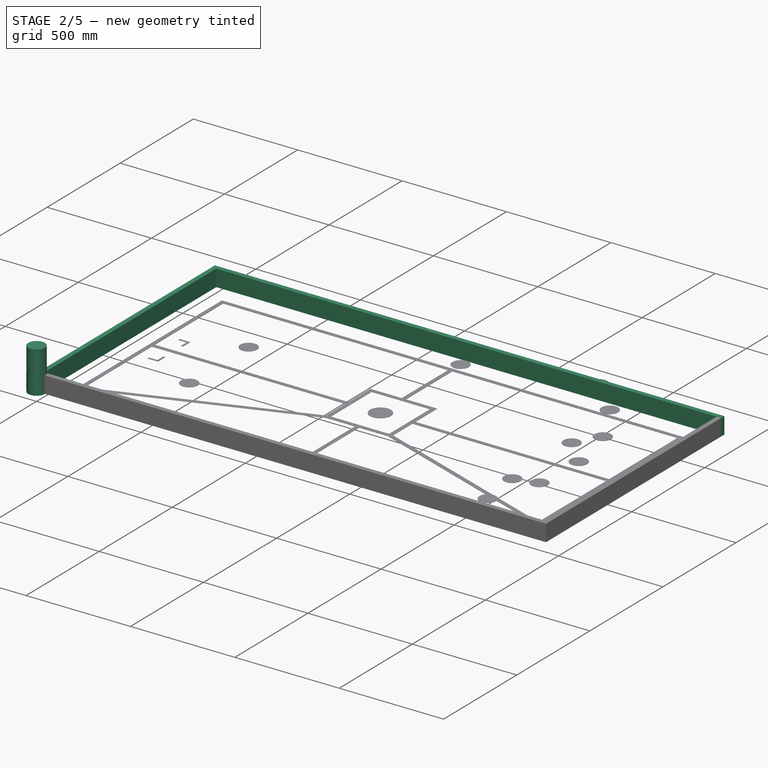
[diagram: stage 2 of 5 — iso view after this stage's code; geometry added in this stage tinted green]
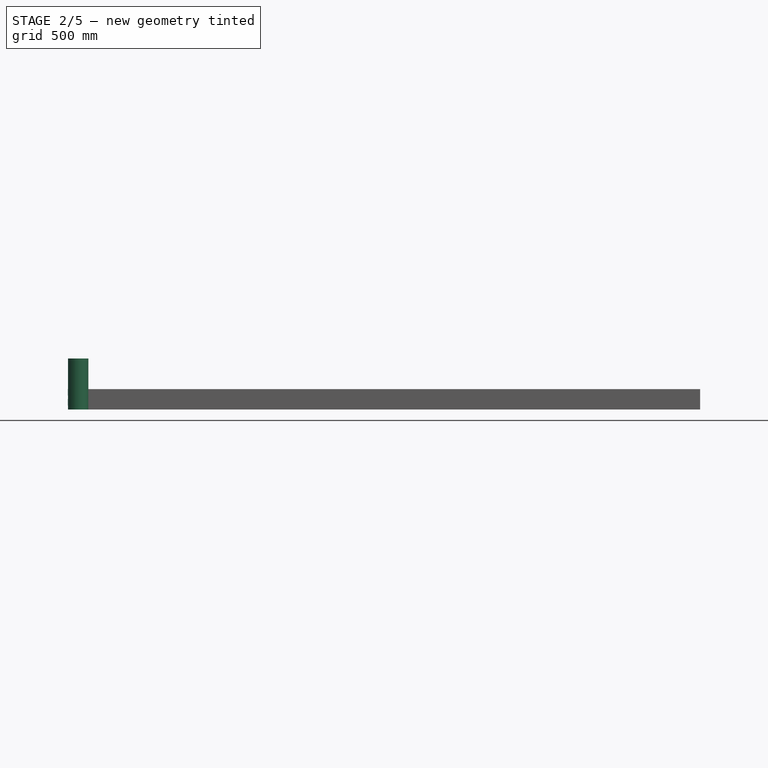
[diagram: stage 2 of 5 — front view after this stage's code; geometry added in this stage tinted green]
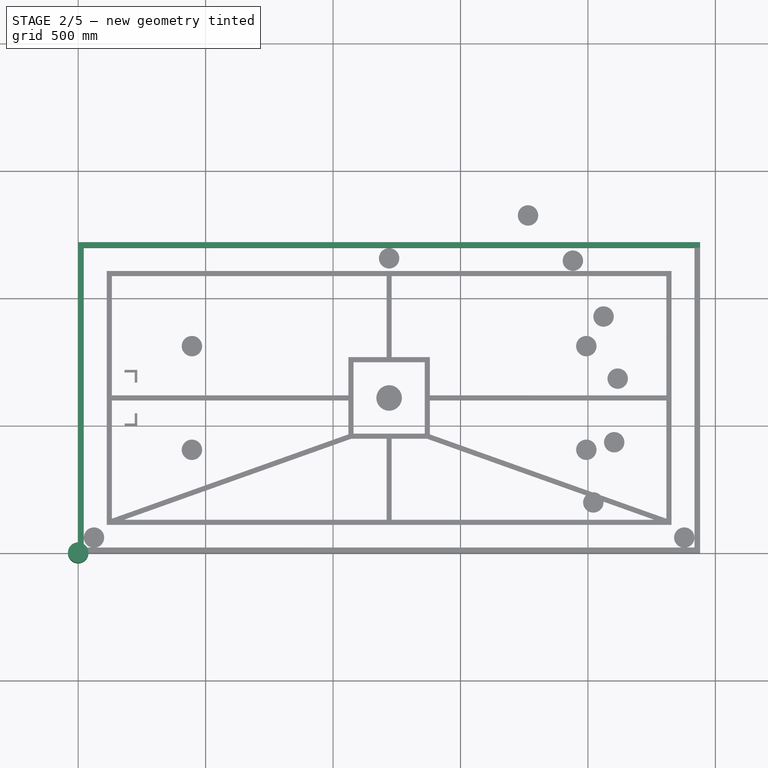
[diagram: stage 2 of 5 — top view after this stage's code; geometry added in this stage tinted green]
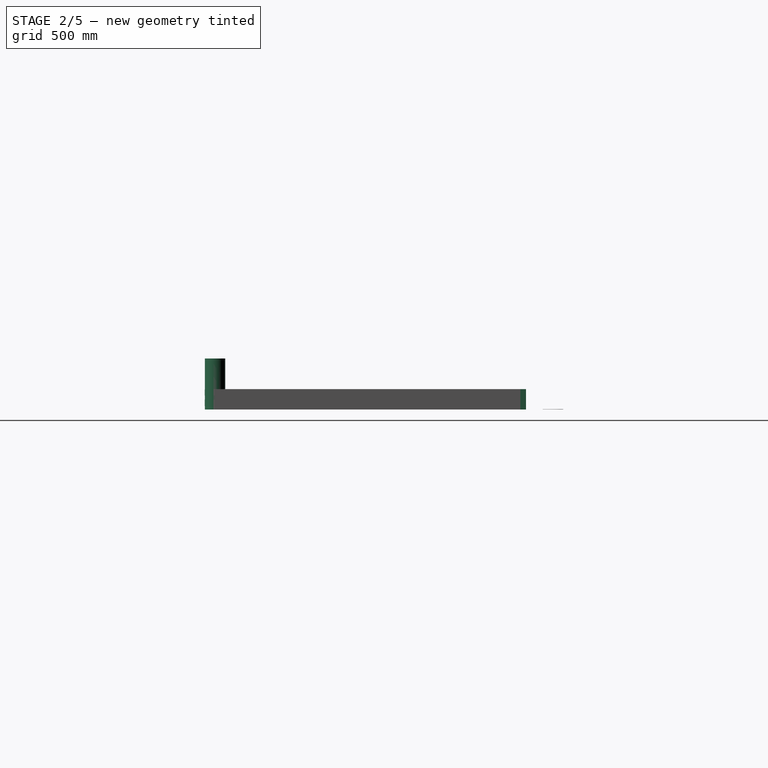
[diagram: stage 2 of 5 — right view after this stage's code; geometry added in this stage tinted green]
FEATURE [Part::Cylinder] Cylinder001  label="Contact-out"
  Angle = 360
  AttacherType = Attacher::AttachEngine3D
  Height = 25
  Radius = 40
FEATURE [Part::Cylinder] Cylinder005  label="Cylindre"
  Angle = 360
  AttacherType = Attacher::AttachEngine3D
  Height = 200
  Radius = 40
FEATURE [Part::Thickness] Thickness001  label="Contact+"
  Faces = -> Cylinder001 [Face3,Face2]
  Intersection = false
  Join = 0
  Mode = 0
  Placement = pos=(0,0,55) rot=(0,0,1;0rad)
  SelfIntersection = false
  Value = 0.2
FEATURE [Part::Cylinder] Cylinder006  label="Contact-out001"
  Angle = 360
  AttacherType = Attacher::AttachEngine3D
  Height = 25
  Radius = 40
FEATURE [Part::Thickness] Thickness002  label="Contact-"
  Faces = -> Cylinder006 [Face3,Face2]
  Intersection = false
  Join = 0
  Mode = 0
  Placement = pos=(0,0,15) rot=(0,0,1;0rad)
  SelfIntersection = false
  Value = 0.2
FEATURE [App::DocumentObjectGroup] Groupe010  label="Sources"
  Group = -> [Fusion002,Fusion003,Fusion004,Fusion005]
FEATURE [Sketcher::SketchObject] Sketch  label="Walls-outline"
  ExternalGeometry = -> [Box]
  MapMode = 5
  Support = -> [Box]
  sketch-geometry (20):
    g0: LineSegment StartX=0 StartY=1220 StartZ=0 EndX=2440 EndY=1220 EndZ=0
    g1: LineSegment StartX=2440 StartY=1220 StartZ=0 EndX=2440 EndY=1198 EndZ=0
    g2: LineSegment StartX=2440 StartY=1198 StartZ=0 EndX=0 EndY=1198 EndZ=0
    g3: LineSegment StartX=0 StartY=1198 StartZ=0 EndX=0 EndY=1220 EndZ=0
    g4: LineSegment StartX=0 StartY=0 StartZ=0 EndX=2440 EndY=0 EndZ=0
    g5: LineSegment StartX=2440 StartY=0 StartZ=0 EndX=2440 EndY=22 EndZ=0
    g6: LineSegment StartX=2440 StartY=22 StartZ=0 EndX=0 EndY=22 EndZ=0
    g7: LineSegment StartX=0 StartY=22 StartZ=0 EndX=0 EndY=0 EndZ=0
    g8: LineSegment StartX=0 StartY=1198 StartZ=0 EndX=22 EndY=1198 EndZ=0
    g9: LineSegment StartX=22 StartY=1198 StartZ=0 EndX=22 EndY=22 EndZ=0
    g10: LineSegment StartX=22 StartY=22 StartZ=0 EndX=0 EndY=22 EndZ=0
    g11: LineSegment StartX=0 StartY=22 StartZ=0 EndX=0 EndY=1198 EndZ=0
    g12: LineSegment StartX=2440 StartY=1198 StartZ=0 EndX=2418 EndY=1198 EndZ=0
    g13: LineSegment StartX=2418 StartY=1198 StartZ=0 EndX=2418 EndY=22 EndZ=0
    g14: LineSegment StartX=2418 StartY=22 StartZ=0 EndX=2440 EndY=22 EndZ=0
    g15: LineSegment StartX=2440 StartY=22 StartZ=0 EndX=2440 EndY=1198 EndZ=0
    g16: LineSegment [constr] StartX=22 StartY=1198 StartZ=0 EndX=22 EndY=1220 EndZ=0
    g17: LineSegment [constr] StartX=22 StartY=22 StartZ=0 EndX=22 EndY=0 EndZ=0
    g18: LineSegment [constr] StartX=0 StartY=22 StartZ=0 EndX=22 EndY=22 EndZ=0
    g19: LineSegment [constr] StartX=2418 StartY=22 StartZ=0 EndX=2440 EndY=22 EndZ=0
  constraints (58):
    c: Coincident(g0,g1)
    c: Coincident(g1,g2)
    c: Coincident(g2,g3)
    c: Coincident(g3,g0)
    c: Horizontal(g0)
    c: Horizontal(g2)
    c: Vertical(g1)
    c: Vertical(g3)
    c: Coincident(g0,g-4)
    c: PointOnObject(g1,g-6)
    c: Coincident(g4,g5)
    c: Coincident(g5,g6)
    c: Coincident(g6,g7)
    c: Coincident(g7,g4)
    c: Horizontal(g4)
    c: Horizontal(g6)
    c: Vertical(g5)
    c: Vertical(g7)
    c: Coincident(g4,g-1)
    c: PointOnObject(g5,g-6)
    c: Coincident(g8,g9)
    c: Coincident(g9,g10)
    c: Coincident(g10,g11)
    c: Coincident(g11,g8)
    c: Horizontal(g8)
    c: Horizontal(g10)
    c: Vertical(g9)
    c: Vertical(g11)
    c: Coincident(g8,g2)
    c: PointOnObject(g9,g6)
    c: Coincident(g12,g13)
    c: Coincident(g13,g14)
    c: Coincident(g14,g15)
    c: Coincident(g15,g12)
    c: Horizontal(g12)
    c: Horizontal(g14)
    c: Vertical(g13)
    c: Vertical(g15)
    c: Coincident(g12,g1)
    c: PointOnObject(g13,g6)
    c: Coincident(g16,g8)
    c: PointOnObject(g16,g-3)
    c: Vertical(g16)
    c: Coincident(g17,g9)
    c: PointOnObject(g17,g-5)
    c: Vertical(g17)
    c: PointOnObject(g18,g-4)
    c: PointOnObject(g18,g9)
    c: Horizontal(g18)
    c: PointOnObject(g19,g13)
    c: PointOnObject(g19,g-6)
    c: Horizontal(g19)
    c: DistanceY(g16,g16) = 22  'BoardThickness'
    c: Equal(g16,g18)
    c: Equal(g18,g17)
    c: Equal(g17,g19)
    c: PointOnObject(g19,g6)
    c: PointOnObject(g18,g6)
FEATURE [Part::RuledSurface] Ruled_Surface  label="W1"
  Curve1 = -> Sketch [Edge15]
  Curve2 = -> Sketch [Edge5]
  Orientation = 0
FEATURE [Part::RuledSurface] Ruled_Surface001  label="W2"
  Curve1 = -> Sketch [Edge1]
  Curve2 = -> Sketch [Edge3]
  Orientation = 0
FEATURE [Part::RuledSurface] Ruled_Surface002  label="W3"
  Curve1 = -> Sketch [Edge12]
  Curve2 = -> Sketch [Edge10]
  Orientation = 0
FEATURE [Part::RuledSurface] Ruled_Surface003  label="W4"
  Curve1 = -> Sketch [Edge14]
  Curve2 = -> Sketch [Edge8]
  Orientation = 0
FEATURE [Part::Extrusion] Extrude001  label="Wall1"
  Base = -> Ruled_Surface
  Dir = (0,0,1)
  DirMode = 0
  FaceMakerClass = Part::FaceMakerBullseye
  LengthFwd = 80
  LengthRev = 0
  Solid = false
  Symmetric = false
FEATURE [Part::Extrusion] Extrude002  label="Wall2"
  Base = -> Ruled_Surface001
  Dir = (0,0,1)
  DirMode = 0
  FaceMakerClass = Part::FaceMakerBullseye
  LengthFwd = 80
  LengthRev = 0
  Solid = false
  Symmetric = false
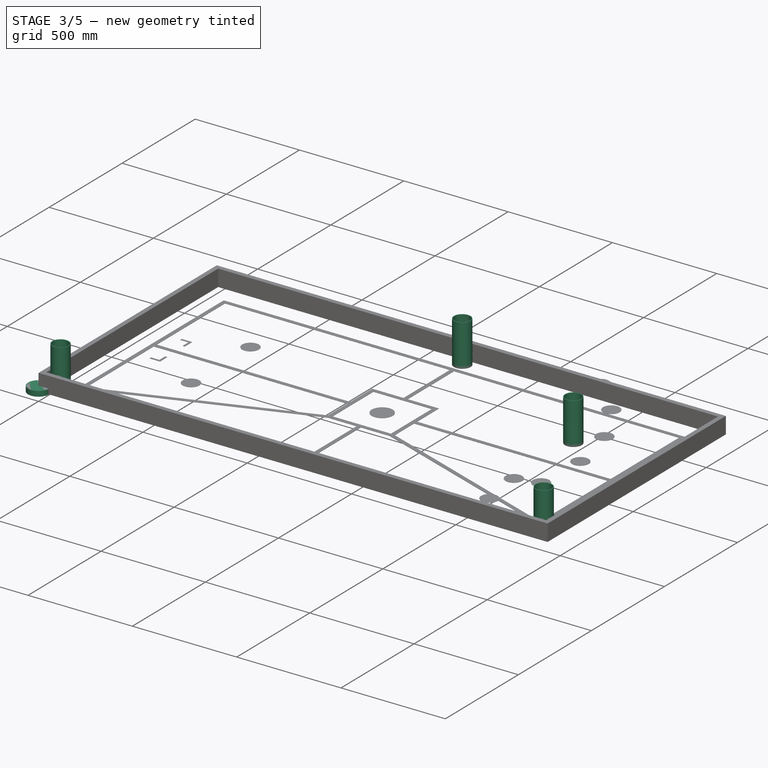
[diagram: stage 3 of 5 — iso view after this stage's code; geometry added in this stage tinted green]
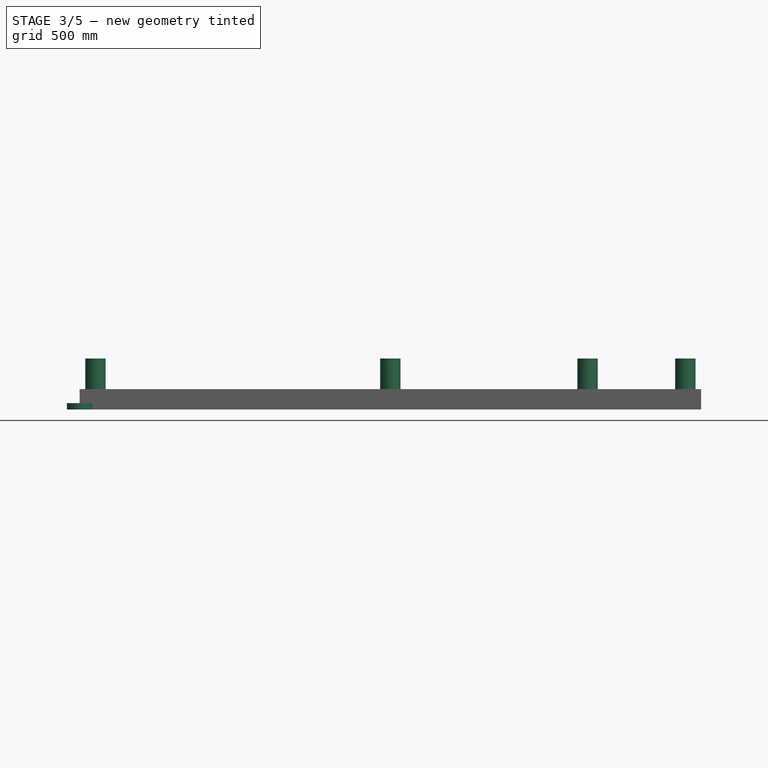
[diagram: stage 3 of 5 — front view after this stage's code; geometry added in this stage tinted green]
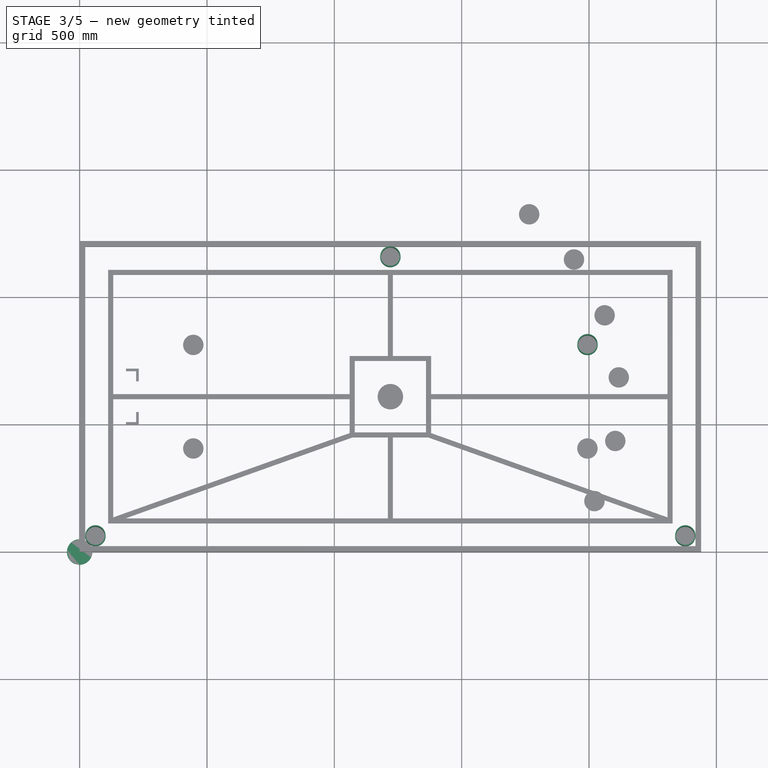
[diagram: stage 3 of 5 — top view after this stage's code; geometry added in this stage tinted green]
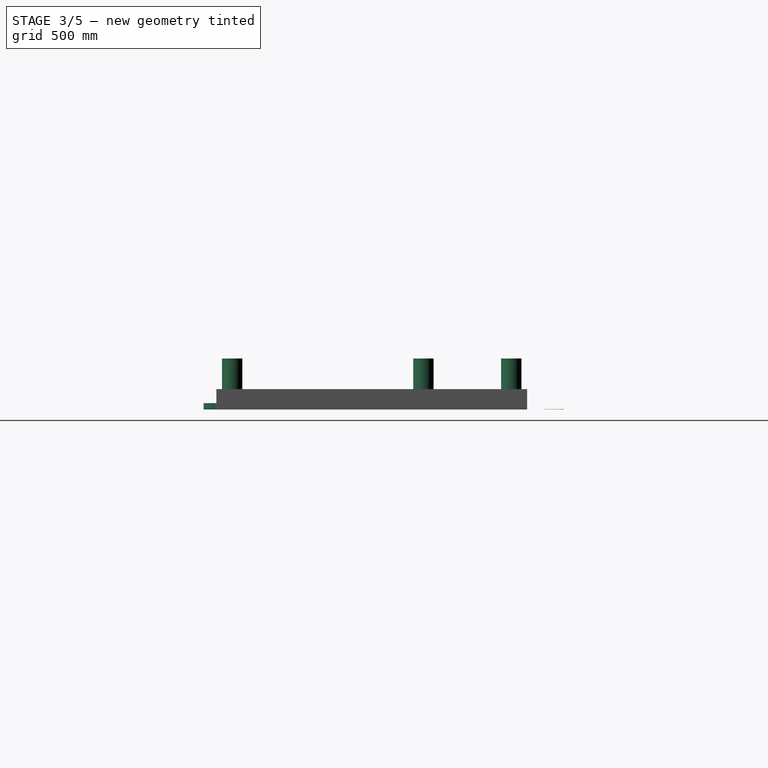
[diagram: stage 3 of 5 — right view after this stage's code; geometry added in this stage tinted green]
FEATURE [Part::Thickness] Thickness  label="Tube"
  Faces = -> Cylinder005 [Face2,Face3]
  Intersection = false
  Join = 0
  Mode = 1
  SelfIntersection = false
  Value = -3.2
FEATURE [Part::Cylinder] Cylinder009  label="Contact-out003"
  Angle = 360
  AttacherType = Attacher::AttachEngine3D
  Height = 25
  Radius = 50
FEATURE [Part::MultiFuse] Fusion002  label="S001"
  Placement = pos=(62,62,0) rot=(0,0,1;0rad)
  Shapes = -> [Thickness001,Thickness,Thickness002]
  expr: Placement.Base.y = 40 + 22
  expr: Placement.Base.x = 40 + 22
FEATURE [Part::MultiFuse] Fusion003  label="S002"
  Placement = pos=(2378,62,0) rot=(0,0,1;0rad)
  Shapes = -> [Thickness001,Thickness,Thickness002]
  expr: Placement.Base.x = 2440 - 40 - 22
  expr: Placement.Base.y = 40 + 22
FEATURE [Part::MultiFuse] Fusion004  label="S003"
  Placement = pos=(1220,1158,0) rot=(0,0,1;0rad)
  Shapes = -> [Thickness001,Thickness,Thickness002]
  expr: Placement.Base.y = 1220 - 22 - 40
  expr: Placement.Base.x = 2440 / 2
FEATURE [Part::MultiFuse] Fusion005  label="S004"
  Placement = pos=(1994,813,0) rot=(0,0,1;0rad)
  Shapes = -> [Thickness001,Thickness,Thickness002]
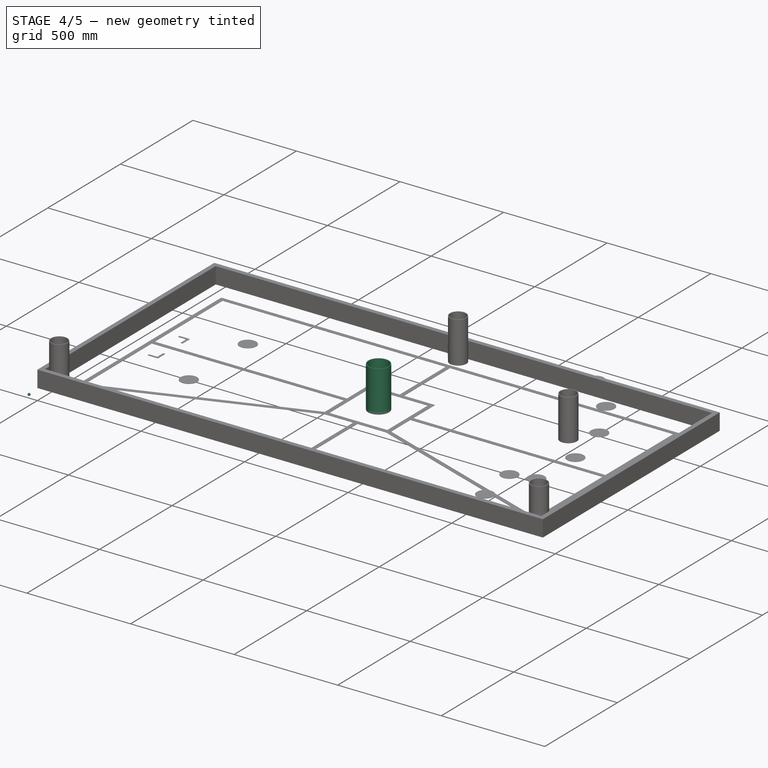
[diagram: stage 4 of 5 — iso view after this stage's code; geometry added in this stage tinted green]
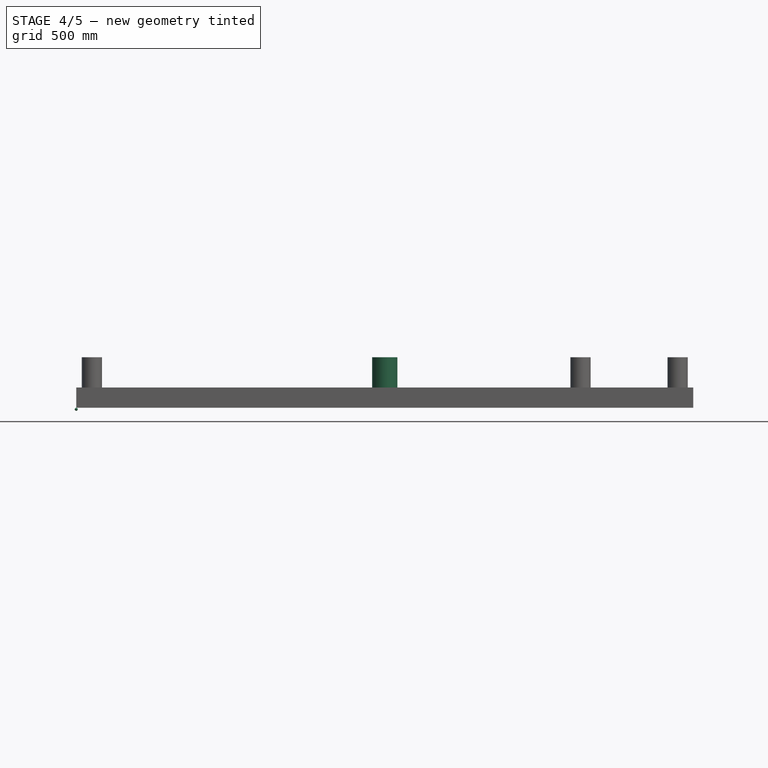
[diagram: stage 4 of 5 — front view after this stage's code; geometry added in this stage tinted green]
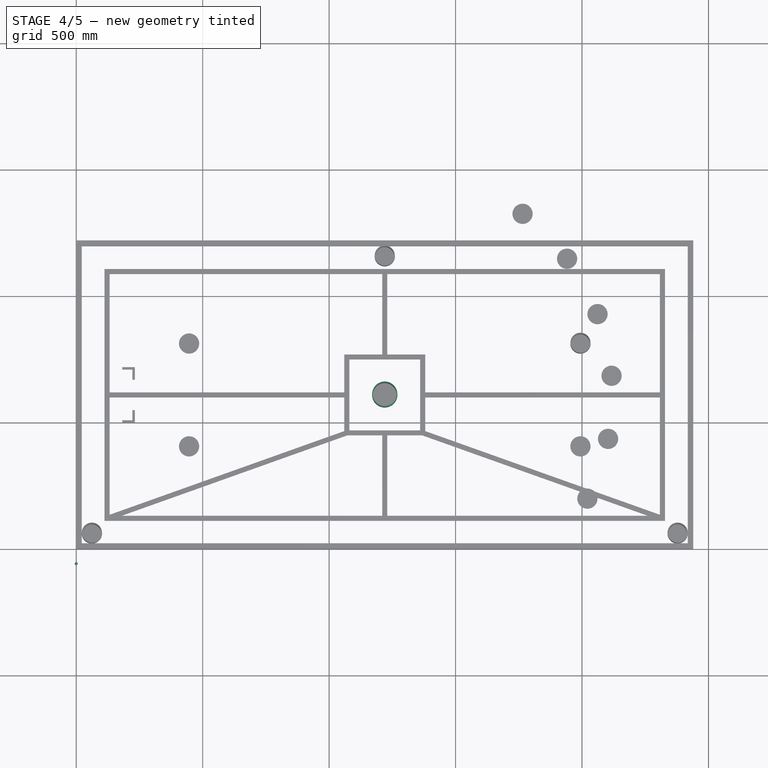
[diagram: stage 4 of 5 — top view after this stage's code; geometry added in this stage tinted green]
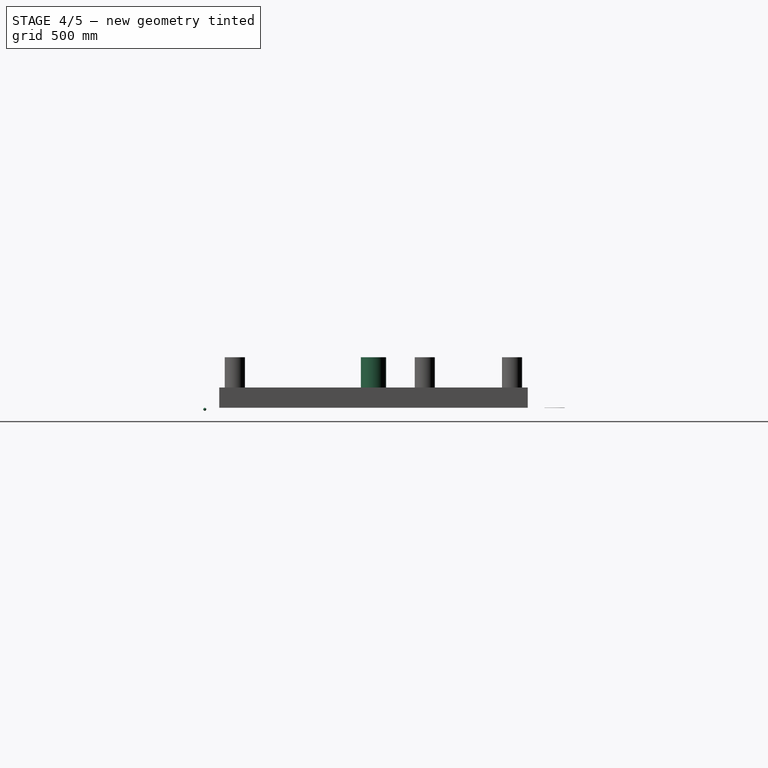
[diagram: stage 4 of 5 — right view after this stage's code; geometry added in this stage tinted green]
FEATURE [App::FeaturePython] Dimension008  # Draft dimension (typed FeaturePython)
  Diameter = false
  Dimline = (-74.2594,1.1881e-05,199.329)
  Direction = (0,0,0)
  Distance = 200
  End = (-40,1.19209e-05,200)
  Normal = (0,-1,5.9605e-08)
  Start = (-40,0,0)
FEATURE [App::FeaturePython] Dimension  # Draft dimension (typed FeaturePython)
  Diameter = false
  Dimline = (60.9211,4.17603e-06,70.0622)
  Direction = (0,0,0)
  Distance = 25
  End = (40.2,3.27826e-06,55)
  Normal = (0,-1,5.9605e-08)
  Start = (40.2,4.76837e-06,80)
FEATURE [App::FeaturePython] Dimension009  # Draft dimension (typed FeaturePython)
  Diameter = false
  Dimline = (60.9211,3.27826e-06,55)
  Direction = (0,0,0)
  Distance = 25
  End = (40.2,8.9407e-07,15)
  Normal = (0,-1,5.9605e-08)
  Start = (40.2,2.38419e-06,40)
FEATURE [App::FeaturePython] Dimension010  # Draft dimension (typed FeaturePython)
  Diameter = false
  Dimline = (-62.1011,2.99651e-06,50.2731)
  Direction = (0,0,0)
  Distance = 55.0004
  End = (-40.2,3.27826e-06,55)
  Normal = (0,-1,5.9605e-08)
  Start = (-40,0,0)
FEATURE [App::FeaturePython] Dimension011  # Draft dimension (typed FeaturePython)
  Diameter = false
  Dimline = (-51.5469,6.76783e-07,11.3545)
  Direction = (0,0,0)
  Distance = 15.0013
  End = (-40.2,8.9407e-07,15)
  Normal = (0,-1,5.9605e-08)
  Start = (-40,0,0)
FEATURE [App::DocumentObjectGroup] Groupe  label="Dims-Front"
  Group = -> [Dimension008,Dimension,Dimension009,Dimension010,Dimension011]
FEATURE [App::FeaturePython] Dimension012  # Draft dimension (typed FeaturePython)
  Diameter = false
  Dimline = (0.217232,57.5408,0)
  Direction = (0,0,0)
  Distance = 80
  End = (40,0,0)
  Normal = (0,0,-1)
  Start = (-40,0,0)
FEATURE [App::FeaturePython] Dimension013  # Draft dimension (typed FeaturePython)
  Diameter = false
  Dimline = (1.21374,52.07,0)
  Direction = (0,0,0)
  Distance = 73.6
  End = (36.8,0,0)
  Normal = (0,0,-1)
  Start = (-36.8,0,0)
FEATURE [App::FeaturePython] Dimension014  # Draft dimension (typed FeaturePython)
  Diameter = false
  Dimline = (38.3368,33.3209,0)
  Direction = (0,0,0)
  Distance = 3.2
  End = (40,7.12463,0)
  Normal = (0,0,-1)
  Start = (36.8,7.12463,0)
FEATURE [App::DocumentObjectGroup] Groupe002  label="Dims-Top"
  Group = -> [Dimension012,Dimension013,Dimension014]
FEATURE [Part::Cylinder] Cylinder007  label="Contact-out002"
  Angle = 360
  AttacherType = Attacher::AttachEngine3D
  Height = 25
  Radius = 50
FEATURE [Part::Cylinder] Cylinder008  label="Cylindre001"
  Angle = 360
  AttacherType = Attacher::AttachEngine3D
  Height = 200
  Radius = 50
FEATURE [Part::Thickness] Thickness003  label="Tube001"
  Faces = -> Cylinder008 [Face2,Face3]
  Intersection = false
  Join = 0
  Mode = 1
  SelfIntersection = false
  Value = -3.2
FEATURE [Part::Thickness] Thickness004  label="Contact+001"
  Faces = -> Cylinder007 [Face3,Face2]
  Intersection = false
  Join = 0
  Mode = 0
  Placement = pos=(0,0,55) rot=(0,0,1;0rad)
  SelfIntersection = false
  Value = 0.2
FEATURE [Part::Thickness] Thickness005  label="Contact-001"
  Faces = -> Cylinder009 [Face3,Face2]
  Intersection = false
  Join = 0
  Mode = 0
  Placement = pos=(0,0,15) rot=(0,0,1;0rad)
  SelfIntersection = false
  Value = 0.2
FEATURE [Part::Sphere] Sphere  label="Bille"
  Angle1 = -90
  Angle2 = 90
  Angle3 = 360
  AttacherType = Attacher::AttachEngine3D
  Placement = pos=(0,-57,-6) rot=(0,0,1;1.5708rad)
  Radius = 6
  expr: Radius = 12 / 2
FEATURE [Part::MultiFuse] Fusion006  label="Station001"
  Placement = pos=(1220,610,0) rot=(0,0,1;0rad)
  Shapes = -> [Thickness004,Thickness003,Thickness005]
  expr: Placement.Base.x = 2440 / 2
  expr: Placement.Base.y = 1220 / 2
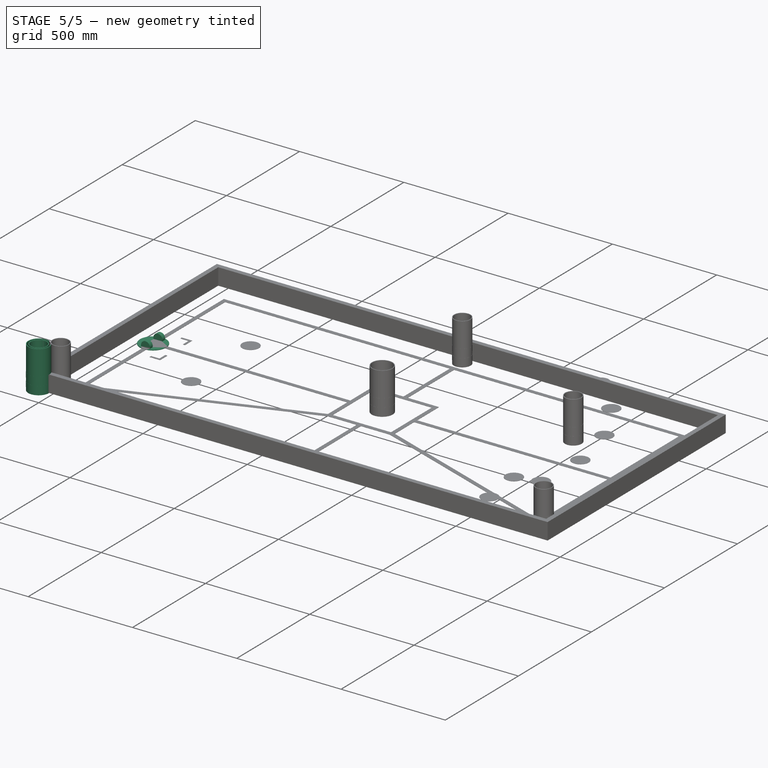
[diagram: stage 5 of 5 — iso view after this stage's code; geometry added in this stage tinted green]
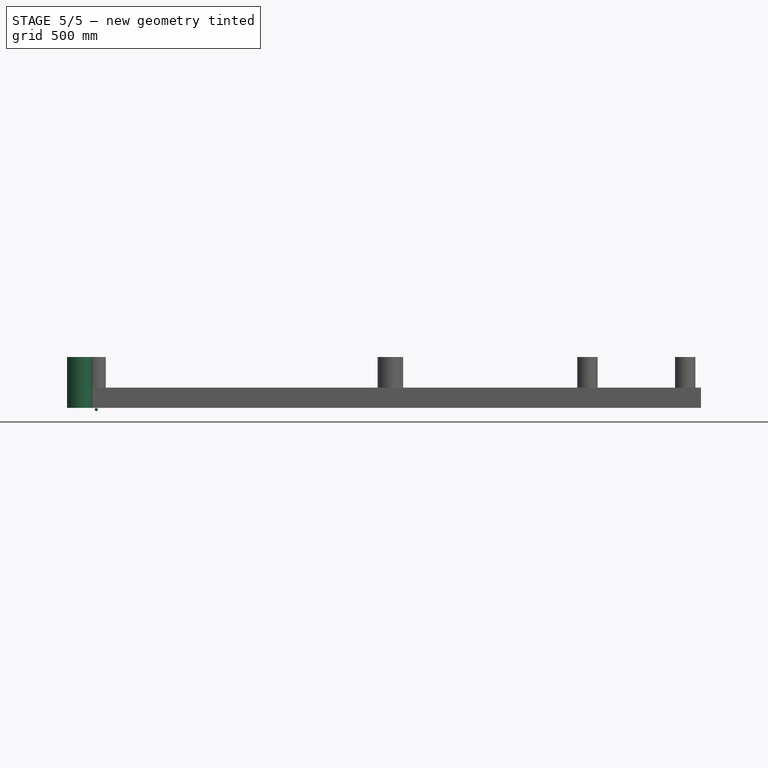
[diagram: stage 5 of 5 — front view after this stage's code; geometry added in this stage tinted green]
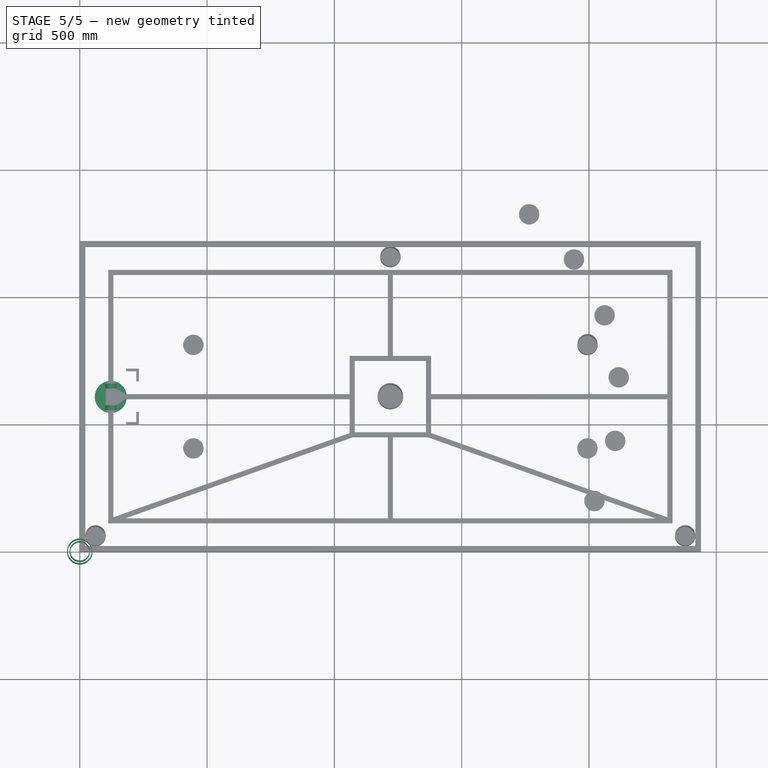
[diagram: stage 5 of 5 — top view after this stage's code; geometry added in this stage tinted green]
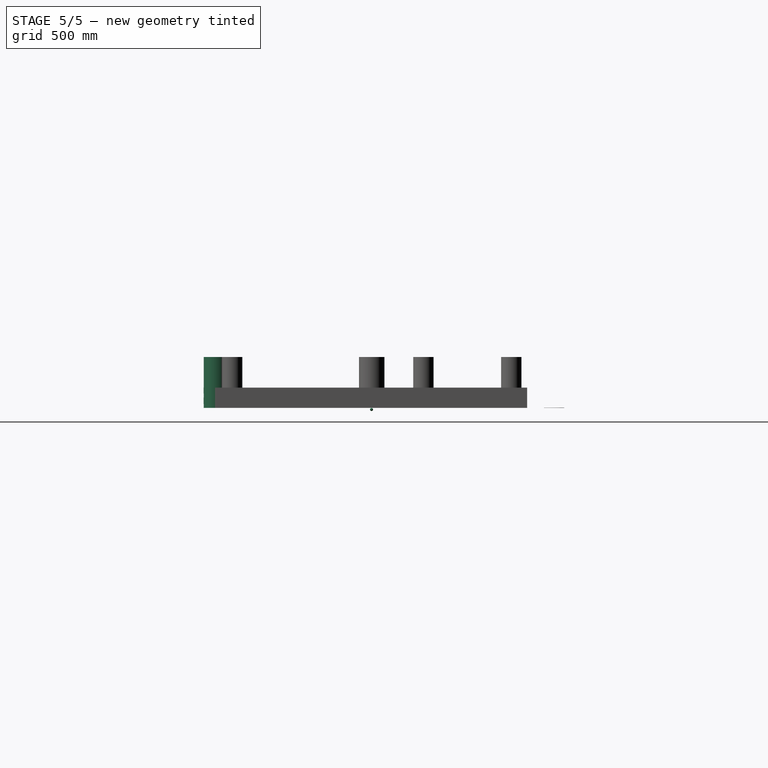
[diagram: stage 5 of 5 — right view after this stage's code; geometry added in this stage tinted green]
FEATURE [Part::MultiFuse] Fusion  label="pSource"
  Shapes = -> [Thickness001,Thickness,Thickness002]
FEATURE [Part::MultiFuse] Fusion001  label="pStation"
  Shapes = -> [Thickness004,Thickness003,Thickness005]
FEATURE [Part::Cylinder] Cylinder  label="Chassis"
  Angle = 360
  AttacherType = Attacher::AttachEngine3D
  Height = 3
  Radius = 63
  expr: Radius = 126 / 2
FEATURE [Part::Cylinder] Cylinder010  label="RoueD"
  Angle = 360
  AttacherType = Attacher::AttachEngine3D
  Height = 19
  Placement = pos=(33,0,9.5) rot=(0.57735,0.57735,0.57735;2.0944rad)
  Radius = 21.5
FEATURE [Part::Cylinder] Cylinder011  label="RoueG"
  Angle = 360
  AttacherType = Attacher::AttachEngine3D
  Height = 19
  Placement = pos=(-33,0,9.5) rot=(-0.577056,-0.576173,0.578818;2.09616rad)
  Radius = 21.5
FEATURE [App::DocumentObjectGroup] Groupe006  label="Robot-parts"
  Group = -> [Cylinder,Cylinder010,Cylinder011,Sphere]
FEATURE [Part::FeaturePython] Connect  label="Robot1"  # WARN: FeaturePython — macro-defined, semantics opaque (R4)
  Objects = -> [Sphere,Cylinder,Cylinder011,Cylinder010]
  Placement = pos=(122,609,0) rot=(0,0,-1;1.5708rad)
  Tolerance = 0
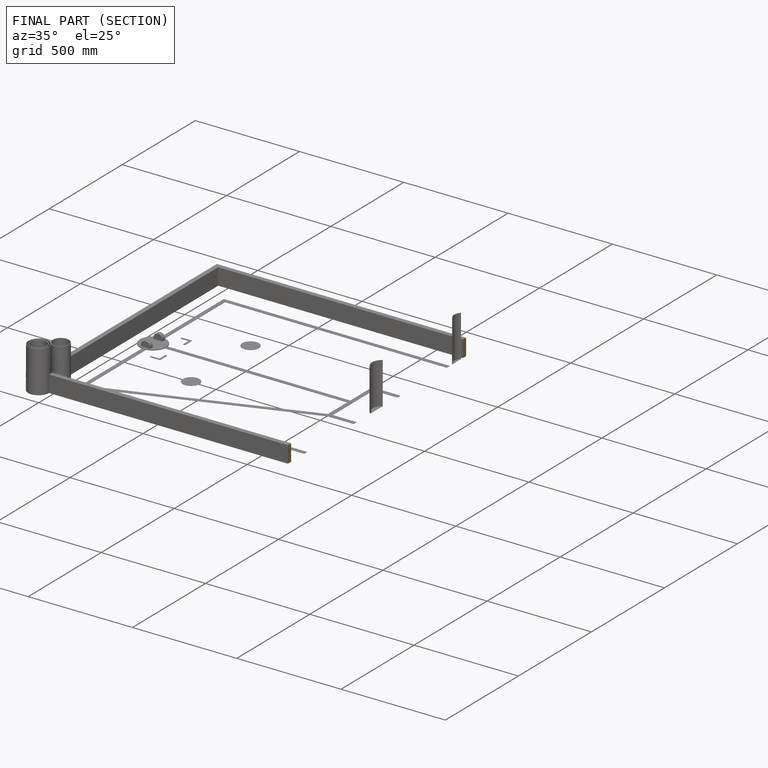
[diagram: finished part — half-section view (interior)]
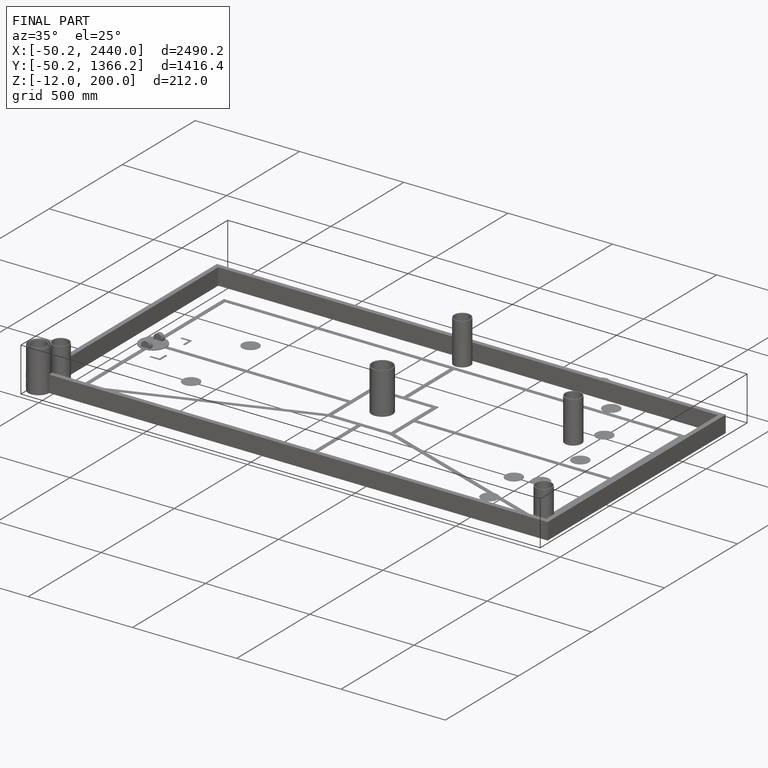
[diagram: finished part — iso view with bounding-box wireframe]
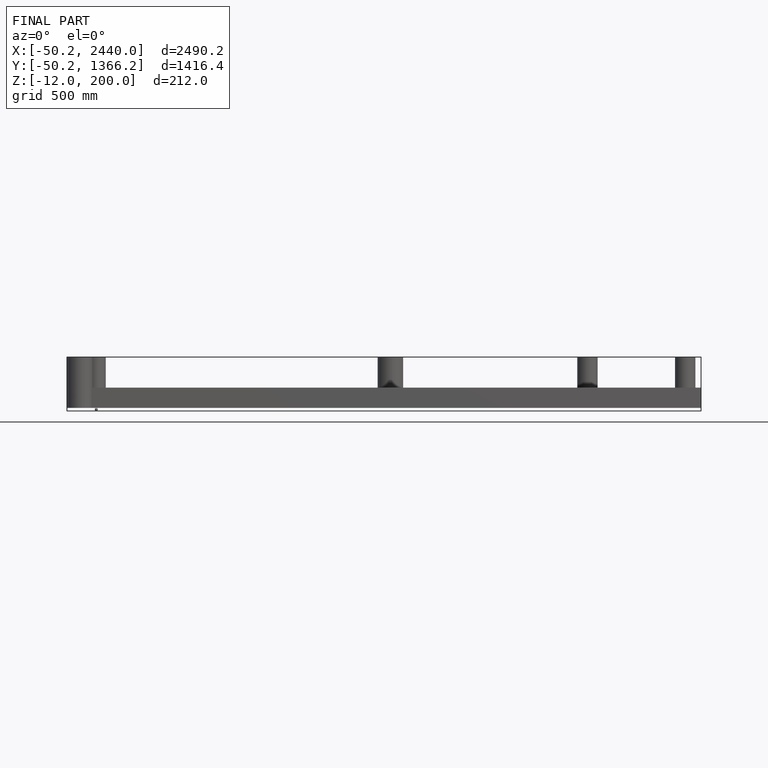
[diagram: finished part — front view with bounding-box wireframe]
